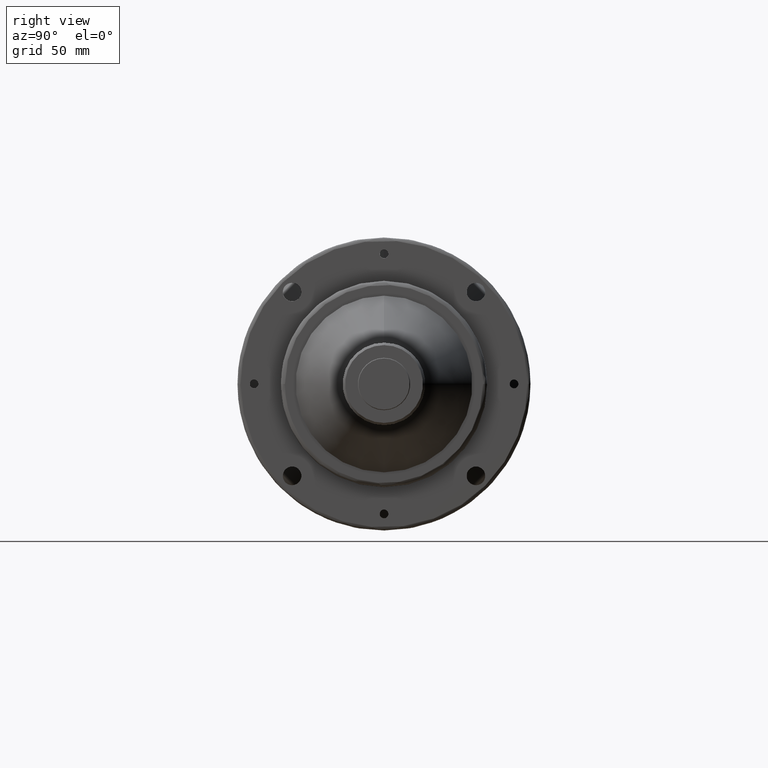
[diagram: clean part render]
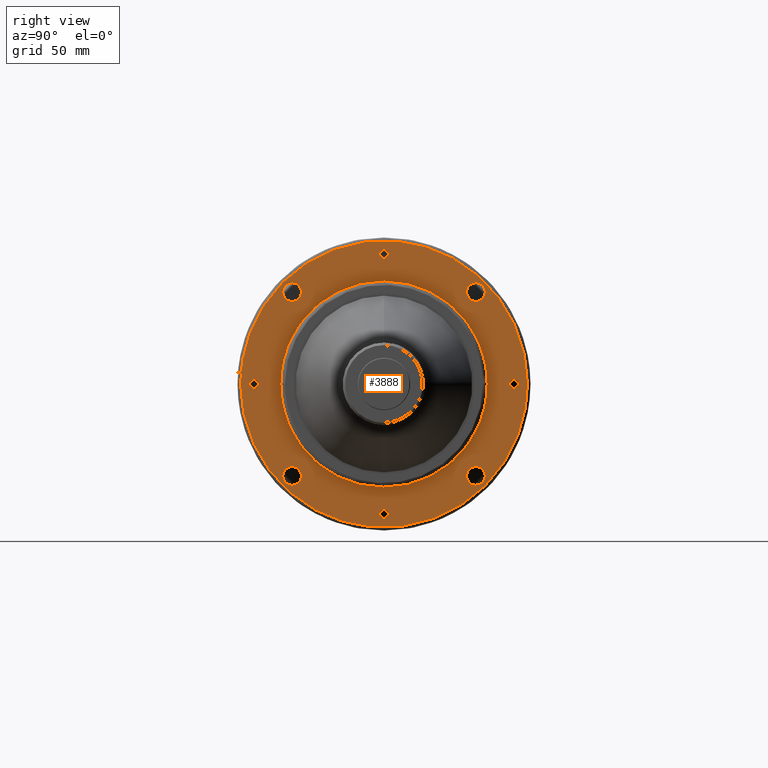
[diagram: same view with one face highlighted and labeled with its STEP entity id]
A machine part, right view. The second image highlights one B-rep face of the part: STEP entity #3888.
In plain terms, the highlighted planar face has unit normal (1, 0, 0).
Its self-contained STEP definition (entity closure, byte-faithful):
#10 = CARTESIAN_POINT ( 'NONE',  ( -7.549999999999999800, -50.19856076491080900, -48.08224704094200800 ) ) ;
#15 = CARTESIAN_POINT ( 'NONE',  ( -7.550000000000000700, 63.00000000000000000, 0.0000000000000000000 ) ) ;
#17 = DIRECTION ( 'NONE',  ( 1.000000000000000000, 0.0000000000000000000, 0.0000000000000000000 ) ) ;
#30 = CARTESIAN_POINT ( 'NONE',  ( -7.550000000000001600, 3.615260546552352800, -69.43241122376834100 ) ) ;
#40 = EDGE_CURVE ( 'NONE', #1975, #3108, #3628, .T. ) ;
#42 = CARTESIAN_POINT ( 'NONE',  ( -7.550000000000000700, 25.09679723494514300, -64.81055583208697600 ) ) ;
#52 = ORIENTED_EDGE ( 'NONE', *, *, #707, .F. ) ;
#54 = CARTESIAN_POINT ( 'NONE',  ( -7.550000000000000700, 63.95429950287173400, 27.23775621173142600 ) ) ;
#63 = FACE_BOUND ( 'NONE', #1265, .T. ) ;
#64 = CARTESIAN_POINT ( 'NONE',  ( -7.550000000000001600, 8.294447970727551600, -69.00351358834350900 ) ) ;
#67 = CARTESIAN_POINT ( 'NONE',  ( -7.550000000000000700, 68.90720405759661600, 9.058214138124242300 ) ) ;
#75 = CARTESIAN_POINT ( 'NONE',  ( -7.549999999999998900, -25.25976417166658900, -64.74721643963924600 ) ) ;
#77 = CARTESIAN_POINT ( 'NONE',  ( -7.549999999999999800, 53.78308353698385200, 44.04662492312582600 ) ) ;
#82 = CARTESIAN_POINT ( 'NONE',  ( -7.550000000000000700, 58.34761153637542500, -37.76728982527618700 ) ) ;
#84 = CARTESIAN_POINT ( 'NONE',  ( -7.550000000000000700, 59.42941193953786400, 36.03326317694079300 ) ) ;
#95 = EDGE_CURVE ( 'NONE', #1355, #2692, #2630, .T. ) ;
#97 = CARTESIAN_POINT ( 'NONE',  ( -7.549999999999999800, 62.41311369195864200, -30.57538663680958300 ) ) ;
#99 = CARTESIAN_POINT ( 'NONE',  ( -7.549999999999999800, 68.06592874925625800, 14.04578603505306100 ) ) ;
#108 = CIRCLE ( 'NONE', #4150, 4.499999999999997300 ) ;
#109 = CARTESIAN_POINT ( 'NONE',  ( -7.549999999999999800, 55.51076990307650800, -41.81872439423686700 ) ) ;
#112 = CARTESIAN_POINT ( 'NONE',  ( -7.550000000000000700, 18.30477206436072300, 67.04779601048049600 ) ) ;
#125 = CARTESIAN_POINT ( 'NONE',  ( -7.550000000000002500, 62.26530769988981000, -30.87576407963481600 ) ) ;
#127 = CARTESIAN_POINT ( 'NONE',  ( -7.549999999999997200, 33.22327052001399700, 61.04517979988700200 ) ) ;
#137 = CARTESIAN_POINT ( 'NONE',  ( -7.550000000000000700, 50.98983104269945000, -47.22593120248878100 ) ) ;
#140 = CARTESIAN_POINT ( 'NONE',  ( -7.550000000000000700, 21.86129115416849100, 65.99883956362266700 ) ) ;
#155 = CARTESIAN_POINT ( 'NONE',  ( -7.550000000000000700, 38.46907077489538600, 57.89805799413041900 ) ) ;
#171 = CARTESIAN_POINT ( 'NONE',  ( -7.549999999999999800, 40.03791677179214000, 56.80899079802440400 ) ) ;
#177 = EDGE_CURVE ( 'NONE', #2692, #1355, #2801, .T. ) ;
#185 = CARTESIAN_POINT ( 'NONE',  ( -7.550000000000001600, -8.294447970838186600, 69.00351358834355200 ) ) ;
#196 = DIRECTION ( 'NONE',  ( 0.0000000000000000000, 0.0000000000000000000, -1.000000000000000000 ) ) ;
#197 = CARTESIAN_POINT ( 'NONE',  ( -7.550000000000000700, -31.63417699425959700, 61.88489750263829600 ) ) ;
#198 = CARTESIAN_POINT ( 'NONE',  ( -7.550000000000000700, -69.50000000069110200, -1.544359106962354800 ) ) ;
#210 = CARTESIAN_POINT ( 'NONE',  ( -7.549999999999999800, -20.51574973066741900, 66.42941320202811500 ) ) ;
#211 = CARTESIAN_POINT ( 'NONE',  ( -7.550000000000000700, -68.17650891087990300, -13.50155357602147500 ) ) ;
#213 = ORIENTED_EDGE ( 'NONE', *, *, #2114, .T. ) ;
#220 = CARTESIAN_POINT ( 'NONE',  ( -7.549999999999999800, 67.32429834172643300, -17.29471601193021600 ) ) ;
#222 = CARTESIAN_POINT ( 'NONE',  ( -7.550000000000000700, -15.88732362170667400, 67.66144867010928000 ) ) ;
#223 = CARTESIAN_POINT ( 'NONE',  ( -7.549999999999999800, -68.10320550340648500, -13.86444423099214000 ) ) ;
#237 = CARTESIAN_POINT ( 'NONE',  ( -7.550000000000000700, -8.475529838048270600, 68.98150071209028100 ) ) ;
#239 = CARTESIAN_POINT ( 'NONE',  ( -7.549999999999999800, -67.54248254134304800, -16.42197921350869200 ) ) ;
#252 = CARTESIAN_POINT ( 'NONE',  ( -7.550000000000000700, -64.23876230954549300, 26.53454522249170100 ) ) ;
#259 = DIRECTION ( 'NONE',  ( -1.000000000000000000, -0.0000000000000000000, 8.673617379884035500E-018 ) ) ;
#269 = CARTESIAN_POINT ( 'NONE',  ( -7.550000000000001600, -59.32118066688163100, 36.21116779202185400 ) ) ;
#271 = CARTESIAN_POINT ( 'NONE',  ( -7.550000000000000700, -60.34930476177179100, -34.47776121907958900 ) ) ;
#284 = CARTESIAN_POINT ( 'NONE',  ( -7.550000000000000700, 69.29498525142652500, -6.164280786298937700 ) ) ;
#288 = CARTESIAN_POINT ( 'NONE',  ( -7.549999999999998900, -67.32429834191785300, 17.29471601111683700 ) ) ;
#289 = CARTESIAN_POINT ( 'NONE',  ( -7.550000000000000700, -56.76676205774423100, -40.10419819830919200 ) ) ;
#307 = CARTESIAN_POINT ( 'NONE',  ( -7.549999999999999800, -58.80791969522658000, -37.05612595060155500 ) ) ;
#327 = CARTESIAN_POINT ( 'NONE',  ( -7.550000000000003400, -66.70326019980493000, 19.51732346155052500 ) ) ;
#328 = CARTESIAN_POINT ( 'NONE',  ( -7.550000000000000700, -46.10741090773434100, -52.00383765573300100 ) ) ;
#344 = CARTESIAN_POINT ( 'NONE',  ( -7.549999999999999800, -63.95429950271125100, -27.23775621196107000 ) ) ;
#355 = CARTESIAN_POINT ( 'NONE',  ( -7.550000000000001600, -17.27906537018446200, -67.31784029000128600 ) ) ;
#368 = CARTESIAN_POINT ( 'NONE',  ( -7.550000000000000700, 30.55498467177055100, -62.42986287144088200 ) ) ;
#381 = ORIENTED_EDGE ( 'NONE', *, *, #4095, .F. ) ;
#382 = CARTESIAN_POINT ( 'NONE',  ( -7.550000000000000700, -13.61440410430327400, -68.18006284680748800 ) ) ;
#384 = CARTESIAN_POINT ( 'NONE',  ( -7.549999999999999800, 69.05313191440346500, 7.885421235342117400 ) ) ;
#393 = AXIS2_PLACEMENT_3D ( 'NONE', #3924, #2231, #196 ) ;
#394 = CARTESIAN_POINT ( 'NONE',  ( -7.550000000000000700, 24.59965545199072800, -65.00124770492989500 ) ) ;
#395 = CARTESIAN_POINT ( 'NONE',  ( -7.549999999999998000, 59.51607179965938600, 35.89003917368981400 ) ) ;
#397 = CARTESIAN_POINT ( 'NONE',  ( -7.550000000000002500, 64.73144780721951000, -25.30054592618736100 ) ) ;
#406 = CARTESIAN_POINT ( 'NONE',  ( -7.549999999999999800, -38.46907077483527400, -57.89805799411262700 ) ) ;
#408 = CARTESIAN_POINT ( 'NONE',  ( -7.550000000000000700, 68.92910199529274000, 8.890741493224366500 ) ) ;
#411 = CIRCLE ( 'NONE', #4138, 2.099999999999990800 ) ;
#416 = B_SPLINE_CURVE_WITH_KNOTS ( 'NONE', 3,
 ( #988, #3678, #1682, #4026, #384, #1046, #408, #67, #3798, #1448, #1077, #747, #2457, #3088, #1089, #2804, #1437, #99, #2782, #3408, #3129, #3447, #2793, #2767, #3459, #433, #1786, #4141, #3783, #1775, #3774, #734, #3420, #2133, #2471, #1738, #419, #711, #4126, #1764, #54, #2082, #3749, #4114, #1423, #3118, #2817, #2121, #2443, #1411, #3099, #1101, #1460, #395, #4088, #84, #2418, #1064, #3762, #1753, #3435, #4100, #2095, #2431, #722, #3109, #2108, #77, #1172, #2869, #1516, #805, #472, #2514, #3864, #2170, #3192, #1483, #778, #3536, #3825, #3164, #2146, #4165, #4201, #1529, #2828, #1155, #171, #2853, #1141, #3177, #1853, #155, #1815, #2187, #3474, #127, #3516, #4154, #3504, #1114, #2200, #2482, #3848, #1837, #2156, #2498, #2841, #4191, #2545, #140, #1825, #112, #457, #3490, #2529, #444, #502, #763, #487, #3155, #818, #4181, #3142, #1471, #3812, #1801, #792, #1128, #1498, #3834, #185, #237, #2262, #1570, #2557, #222, #4218, #3239, #872, #3938, #2232, #210, #3222, #1258, #1583, #1930, #2587, #2903, #3926, #2889, #1915, #197, #851, #1205, #905, #1238, #4234, #2575, #3207, #534, #1190, #3910, #1900, #3252, #1885, #522, #888, #4265, #2919, #3267, #544, #3564, #1222, #3895, #4247, #3608, #3593, #2248, #2600, #560, #1597, #2935, #3577, #2946, #4279, #2276, #2614, #835, #3551, #1544, #3877, #1871, #2215, #1556, #4356, #2995, #1613, #1273, #1947, #269, #572, #2686, #2290, #634, #1345, #1999, #2341, #4296, #982, #3348, #3654, #1965, #3690, #252, #3624, #950, #1645, #936, #3972, #1326, #617, #3010, #3955, #2631, #1310, #3299, #2668, #327, #3671, #1676, #288, #592, #1660, #2963, #4003, #2305, #2979, #1291, #3026, #3635, #3317, #919, #3989, #4308, #3284, #1982, #4325, #967, #2650, #1628, #3332 ),
 .UNSPECIFIED., .F., .F.,
 ( 4, 1, 1, 1, 1, 1, 1, 1, 2, 2, 1, 1, 1, 1, 1, 2, 2, 1, 1, 1, 1, 1, 2, 2, 1, 1, 1, 1, 1, 2, 2, 1, 1, 1, 1, 1, 2, 2, 1, 1, 1, 1, 1, 2, 2, 1, 1, 1, 1, 1, 2, 2, 1, 1, 1, 1, 1, 2, 2, 1, 1, 1, 1, 1, 2, 2, 1, 1, 1, 1, 1, 2, 2, 1, 1, 1, 1, 1, 2, 2, 1, 1, 1, 1, 2, 2, 1, 1, 1, 1, 2, 2, 1, 1, 1, 2, 2, 2, 1, 1, 1, 2, 2, 1, 1, 1, 1, 2, 2, 1, 1, 1, 1, 2, 2, 1, 1, 1, 1, 1, 2, 2, 1, 1, 1, 1, 1, 2, 2, 1, 1, 1, 1, 1, 2, 2, 1, 1, 1, 1, 1, 2, 2, 1, 1, 1, 1, 1, 2, 2, 1, 1, 1, 1, 1, 2, 2, 1, 1, 1, 1, 1, 2, 2, 1, 1, 1, 1, 1, 2, 2, 1, 1, 1, 1, 1, 2, 2, 1, 1, 1, 1, 1, 2, 2, 1, 1, 1, 1, 1, 1, 2, 2, 4 ),
 ( 0.0000000000000000000, 0.03125000000000508600, 0.04687500000000763300, 0.05468750000000890300, 0.05859375000000949900, 0.06054687500000981900, 0.06152343750000999900, 0.06201171875001012400, 0.06225585937501016500, 0.06250000000001021400, 0.07812500000001268400, 0.08593750000001394700, 0.08984375000001458600, 0.09179687500001491900, 0.09277343750001508500, 0.09326171875001518200, 0.09375000000001527900, 0.1093750000000187200, 0.1171875000000204000, 0.1210937500000212200, 0.1230468750000216600, 0.1240234375000218300, 0.1245117187500219000, 0.1250000000000219800, 0.1406250000000234000, 0.1484375000000240600, 0.1523437500000244200, 0.1542968750000246500, 0.1552734375000247600, 0.1557617187500247900, 0.1562500000000248400, 0.1718750000000262000, 0.1796875000000268700, 0.1835937500000271700, 0.1855468750000273100, 0.1865234375000274200, 0.1870117187500274500, 0.1875000000000274500, 0.2031250000000278100, 0.2109375000000279800, 0.2148437500000280900, 0.2167968750000280900, 0.2177734375000281200, 0.2182617187500280900, 0.2187500000000280600, 0.2343750000000288400, 0.2421875000000292800, 0.2460937500000295000, 0.2480468750000296200, 0.2490234375000296400, 0.2495117187500296400, 0.2500000000000296400, 0.2656250000000294800, 0.2734375000000293700, 0.2773437500000293100, 0.2792968750000292500, 0.2802734375000292500, 0.2807617187500292500, 0.2812500000000293100, 0.2968750000000295900, 0.3046875000000297500, 0.3085937500000299200, 0.3105468750000300300, 0.3115234375000300300, 0.3120117187500300300, 0.3125000000000299800, 0.3281250000000305900, 0.3359375000000308100, 0.3398437500000309200, 0.3417968750000310300, 0.3427734375000310900, 0.3432617187500310900, 0.3437500000000311400, 0.3593750000000331400, 0.3671875000000340800, 0.3710937500000345300, 0.3730468750000347500, 0.3740234375000348600, 0.3745117187500349200, 0.3750000000000349700, 0.3906250000000373000, 0.3984375000000385200, 0.4023437500000391400, 0.4042968750000394100, 0.4052734375000395200, 0.4062500000000396300, 0.4218750000000418000, 0.4296875000000429100, 0.4335937500000434700, 0.4355468750000438000, 0.4365234375000439600, 0.4375000000000441300, 0.4531250000000468000, 0.4609375000000480700, 0.4648437500000487400, 0.4667968750000490700, 0.4687500000000493500, 0.5000000000000548500, 0.5156250000000576200, 0.5234375000000589500, 0.5273437500000596200, 0.5292968750000599500, 0.5312500000000602900, 0.5468750000000629500, 0.5546875000000641700, 0.5585937500000648400, 0.5605468750000651700, 0.5615234375000652800, 0.5625000000000655000, 0.5781250000000683900, 0.5859375000000698300, 0.5898437500000706100, 0.5917968750000709400, 0.5927734375000710500, 0.5937500000000711700, 0.6093750000000732700, 0.6171875000000743800, 0.6210937500000749400, 0.6230468750000750500, 0.6240234375000751600, 0.6245117187500752700, 0.6250000000000752700, 0.6406250000000760500, 0.6484375000000764900, 0.6523437500000766100, 0.6542968750000767200, 0.6552734375000768300, 0.6557617187500768300, 0.6562500000000769400, 0.6718750000000771600, 0.6796875000000771600, 0.6835937500000772700, 0.6855468750000772700, 0.6865234375000772700, 0.6870117187500772700, 0.6875000000000772700, 0.7031250000000761600, 0.7109375000000755000, 0.7148437500000751600, 0.7167968750000749400, 0.7177734375000748300, 0.7182617187500747200, 0.7187500000000746100, 0.7343750000000712800, 0.7421875000000695000, 0.7460937500000687200, 0.7480468750000683900, 0.7490234375000681700, 0.7495117187500681700, 0.7500000000000680600, 0.7656250000000657300, 0.7734375000000646100, 0.7773437500000640600, 0.7792968750000637300, 0.7802734375000636200, 0.7807617187500635000, 0.7812500000000632800, 0.7968750000000590600, 0.8046875000000570700, 0.8085937500000559600, 0.8105468750000555100, 0.8115234375000552900, 0.8120117187500550700, 0.8125000000000549600, 0.8281250000000497400, 0.8359375000000470700, 0.8398437500000458500, 0.8417968750000451900, 0.8427734375000449600, 0.8432617187500447400, 0.8437500000000446300, 0.8593750000000399700, 0.8671875000000376400, 0.8710937500000365300, 0.8730468750000359700, 0.8740234375000356400, 0.8745117187500355300, 0.8750000000000354200, 0.8906250000000288700, 0.8984375000000255400, 0.9023437500000238700, 0.9042968750000230900, 0.9052734375000226500, 0.9057617187500225400, 0.9062500000000224300, 0.9218750000000162100, 0.9296875000000132100, 0.9335937500000117700, 0.9355468750000109900, 0.9365234375000105500, 0.9370117187500104400, 0.9372558593750103300, 0.9375000000000102100, 1.000000000000000000 ),
 .UNSPECIFIED. ) ;
#417 = CARTESIAN_POINT ( 'NONE',  ( -7.549999999999999800, 38.60239017781153600, -57.79537092843164500 ) ) ;
#419 = CARTESIAN_POINT ( 'NONE',  ( -7.550000000000000700, 64.93392391623731900, 24.77572044679442700 ) ) ;
#426 = VERTEX_POINT ( 'NONE', #1050 ) ;
#429 = CARTESIAN_POINT ( 'NONE',  ( -7.550000000000000700, 63.55084096188070900, -28.16626316003152300 ) ) ;
#433 = CARTESIAN_POINT ( 'NONE',  ( -7.550000000000000700, 66.82930120887947100, 19.08183642733719100 ) ) ;
#440 = CARTESIAN_POINT ( 'NONE',  ( -7.550000000000000700, 59.95088452942056300, -35.17513152892566800 ) ) ;
#444 = CARTESIAN_POINT ( 'NONE',  ( -7.550000000000000700, 17.19471154812128700, 67.33943761591639500 ) ) ;
#455 = CARTESIAN_POINT ( 'NONE',  ( -7.550000000000000700, 45.57644664140999400, -52.46941075759613700 ) ) ;
#457 = CARTESIAN_POINT ( 'NONE',  ( -7.550000000000000700, 17.70695552318840900, 67.20691159242092300 ) ) ;
#467 = AXIS2_PLACEMENT_3D ( 'NONE', #871, #3266, #2274 ) ;
#471 = CARTESIAN_POINT ( 'NONE',  ( -7.550000000000000700, 54.97108579746820600, -42.52746396882445600 ) ) ;
#472 = CARTESIAN_POINT ( 'NONE',  ( -7.550000000000000700, 51.14331039656100600, 47.05967585577784700 ) ) ;
#487 = CARTESIAN_POINT ( 'NONE',  ( -7.550000000000000700, 11.14135281391699900, 68.60781726397731000 ) ) ;
#502 = CARTESIAN_POINT ( 'NONE',  ( -7.550000000000000700, 15.71538446372094600, 67.71515200287827000 ) ) ;
#522 = CARTESIAN_POINT ( 'NONE',  ( -7.550000000000000700, -39.53966341634120600, 57.15650983350144500 ) ) ;
#534 = CARTESIAN_POINT ( 'NONE',  ( -7.550000000000000700, -37.62300251807261700, 58.44275675383601500 ) ) ;
#536 = VERTEX_POINT ( 'NONE', #2548 ) ;
#544 = CARTESIAN_POINT ( 'NONE',  ( -7.550000000000002500, -45.27015428234319200, 52.73432771560868600 ) ) ;
#557 = CARTESIAN_POINT ( 'NONE',  ( -7.550000000000000700, 64.86855669955619400, -24.94636840093470200 ) ) ;
#560 = CARTESIAN_POINT ( 'NONE',  ( -7.549999999999998900, -50.67197046115736500, 47.56725663738284700 ) ) ;
#572 = CARTESIAN_POINT ( 'NONE',  ( -7.549999999999998900, -59.35795304108843600, 36.15085882400057900 ) ) ;
#573 = CARTESIAN_POINT ( 'NONE',  ( -7.550000000000002500, -66.75141105963577100, -19.35199785509238200 ) ) ;
#587 = CARTESIAN_POINT ( 'NONE',  ( -7.550000000000000700, 67.86335111312256200, -14.99680590235217400 ) ) ;
#592 = CARTESIAN_POINT ( 'NONE',  ( -7.550000000000001600, -67.69106689386431700, 15.76466445934577400 ) ) ;
#600 = CARTESIAN_POINT ( 'NONE',  ( -7.550000000000002500, 68.00512639611497400, -14.33713650917242800 ) ) ;
#603 = CIRCLE ( 'NONE', #801, 4.500000000000003600 ) ;
#605 = CARTESIAN_POINT ( 'NONE',  ( -7.550000000000000700, -39.80574023977031600, -56.97161109967500900 ) ) ;
#617 = CARTESIAN_POINT ( 'NONE',  ( -7.550000000000001600, -65.23328529726039400, 23.99545343952254900 ) ) ;
#618 = CARTESIAN_POINT ( 'NONE',  ( -7.550000000000000700, -64.96583608039897200, -24.69202804754523600 ) ) ;
#625 = ORIENTED_EDGE ( 'NONE', *, *, #1420, .F. ) ;
#634 = CARTESIAN_POINT ( 'NONE',  ( -7.550000000000000700, -60.75271028035390200, 33.78417080360046000 ) ) ;
#636 = CARTESIAN_POINT ( 'NONE',  ( -7.550000000000001600, -46.51364306101274300, -51.64205296160753300 ) ) ;
#655 = CARTESIAN_POINT ( 'NONE',  ( -7.549999999999996300, -62.56872603515460400, -30.25576652538056200 ) ) ;
#667 = CARTESIAN_POINT ( 'NONE',  ( -7.549999999999999800, -45.90333909971443700, -52.18375175878037500 ) ) ;
#670 = DIRECTION ( 'NONE',  ( 1.000000000000000000, 0.0000000000000000000, 0.0000000000000000000 ) ) ;
#684 = CARTESIAN_POINT ( 'NONE',  ( -7.550000000000000700, -18.30477206434925800, -67.04779601049040100 ) ) ;
#691 = ORIENTED_EDGE ( 'NONE', *, *, #4015, .T. ) ;
#694 = VERTEX_POINT ( 'NONE', #1208 ) ;
#695 = CARTESIAN_POINT ( 'NONE',  ( -7.550000000000000700, 26.46633858475649600, -64.27827650887915900 ) ) ;
#703 = DIRECTION ( 'NONE',  ( 1.000000000000000000, 0.0000000000000000000, 0.0000000000000000000 ) ) ;
#707 = EDGE_CURVE ( 'NONE', #1916, #1526, #603, .T. ) ;
#708 = CARTESIAN_POINT ( 'NONE',  ( -7.549999999999999800, -25.49934572472703200, -64.65323566181484700 ) ) ;
#711 = CARTESIAN_POINT ( 'NONE',  ( -7.550000000000002500, 64.91261266040024200, 24.83150326316631900 ) ) ;
#719 = CARTESIAN_POINT ( 'NONE',  ( -7.550000000000000700, 10.07902977875887500, -68.78029002936503400 ) ) ;
#722 = CARTESIAN_POINT ( 'NONE',  ( -7.550000000000001600, 55.64236188364857600, 41.64347186052036400 ) ) ;
#725 = FACE_BOUND ( 'NONE', #2873, .T. ) ;
#733 = CARTESIAN_POINT ( 'NONE',  ( -7.550000000000002500, -32.74401390420227600, -61.30319222041242700 ) ) ;
#734 = CARTESIAN_POINT ( 'NONE',  ( -7.549999999999998000, 66.02339109603205700, 21.74307443268780900 ) ) ;
#745 = CARTESIAN_POINT ( 'NONE',  ( -7.550000000000000700, 39.50392321831677800, -57.18121848517878900 ) ) ;
#747 = CARTESIAN_POINT ( 'NONE',  ( -7.550000000000001600, 68.88671056685917900, 9.212560375546258800 ) ) ;
#760 = CARTESIAN_POINT ( 'NONE',  ( -7.550000000000000700, 50.29878281740026600, -47.96303904799793800 ) ) ;
#763 = CARTESIAN_POINT ( 'NONE',  ( -7.550000000000000700, 13.61440410439956300, 68.18006284679940200 ) ) ;
#774 = CARTESIAN_POINT ( 'NONE',  ( -7.550000000000000700, 55.55541910674128300, -41.75939082263008100 ) ) ;
#778 = CARTESIAN_POINT ( 'NONE',  ( -7.549999999999999800, 46.51364306118424700, 51.64205296140062300 ) ) ;
#788 = CARTESIAN_POINT ( 'NONE',  ( -7.550000000000002500, 46.63565270216904000, -51.54526104549080400 ) ) ;
#792 = CARTESIAN_POINT ( 'NONE',  ( -7.550000000000002500, -3.615260547351649500, 69.43241122376838300 ) ) ;
#801 = AXIS2_PLACEMENT_3D ( 'NONE', #2220, #1875, #3213 ) ;
#802 = CARTESIAN_POINT ( 'NONE',  ( -7.550000000000001600, 33.89073299459358400, -60.69162040548508900 ) ) ;
#805 = CARTESIAN_POINT ( 'NONE',  ( -7.549999999999999800, 51.21870587700937700, 46.97769388678901900 ) ) ;
#814 = CARTESIAN_POINT ( 'NONE',  ( -7.550000000000000700, 0.0000000000000000000, -63.00000000000000000 ) ) ;
#818 = CARTESIAN_POINT ( 'NONE',  ( -7.550000000000000700, 9.365889867632290600, 68.86627120392353200 ) ) ;
#820 = CIRCLE ( 'NONE', #1640, 4.500000000000003600 ) ;
#825 = FACE_BOUND ( 'NONE', #1301, .T. ) ;
#835 = CARTESIAN_POINT ( 'NONE',  ( -7.550000000000000700, -54.97108579744279000, 42.52746396887856400 ) ) ;
#837 = AXIS2_PLACEMENT_3D ( 'NONE', #814, #1216, #1525 ) ;
#851 = CARTESIAN_POINT ( 'NONE',  ( -7.550000000000000700, -32.17096554415351100, 61.60626379771000700 ) ) ;
#858 = CARTESIAN_POINT ( 'NONE',  ( -7.549999999963315400, 69.49999998662580900, 0.0000000000000000000 ) ) ;
#866 = AXIS2_PLACEMENT_3D ( 'NONE', #3281, #1593, #901 ) ;
#871 = CARTESIAN_POINT ( 'NONE',  ( -7.550000000000000700, 0.0000000000000000000, 63.00000000000000000 ) ) ;
#872 = CARTESIAN_POINT ( 'NONE',  ( -7.549999999999999800, -16.93357724024665200, 67.40557788604076000 ) ) ;
#888 = CARTESIAN_POINT ( 'NONE',  ( -7.550000000000001600, -40.63824399967585100, 56.39559993744864400 ) ) ;
#889 = CARTESIAN_POINT ( 'NONE',  ( -7.550000000000001600, -68.03904949966707200, -14.17527399289572400 ) ) ;
#900 = CARTESIAN_POINT ( 'NONE',  ( -7.550000000000000700, 68.02282254857583200, -14.25293950921228600 ) ) ;
#901 = DIRECTION ( 'NONE',  ( 0.0000000000000000000, 0.0000000000000000000, -1.000000000000000000 ) ) ;
#903 = ORIENTED_EDGE ( 'NONE', *, *, #4022, .F. ) ;
#905 = CARTESIAN_POINT ( 'NONE',  ( -7.549999999999999800, -32.55323281091799000, 61.40471341072463900 ) ) ;
#917 = CARTESIAN_POINT ( 'NONE',  ( -7.550000000000000700, 65.23328529704593800, -23.99545344016259600 ) ) ;
#919 = CARTESIAN_POINT ( 'NONE',  ( -7.550000000000001600, -68.78330853499741700, 9.959155895538240000 ) ) ;
#920 = ORIENTED_EDGE ( 'NONE', *, *, #177, .F. ) ;
#936 = CARTESIAN_POINT ( 'NONE',  ( -7.549999999999997200, -64.84580738884166400, 25.00544284902024500 ) ) ;
#945 = CIRCLE ( 'NONE', #837, 2.099999999999990800 ) ;
#946 = CARTESIAN_POINT ( 'NONE',  ( -7.550000000000000700, 68.67500669357633600, -10.69147034324425900 ) ) ;
#950 = CARTESIAN_POINT ( 'NONE',  ( -7.549999999999999800, -64.73144780726130400, 25.30054592611332600 ) ) ;
#951 = CARTESIAN_POINT ( 'NONE',  ( -7.550000000000000700, -39.70603994978316800, -57.04105497924419400 ) ) ;
#967 = CARTESIAN_POINT ( 'NONE',  ( -7.549999999999999800, -68.88335407516876800, 9.237622243978490700 ) ) ;
#969 = CARTESIAN_POINT ( 'NONE',  ( -7.550000000000000700, -59.46410138106498500, -35.97598738332591500 ) ) ;
#973 = CARTESIAN_POINT ( 'NONE',  ( -7.550000000000000700, 44.54772721499999500, -44.54772721499999500 ) ) ;
#976 = CARTESIAN_POINT ( 'NONE',  ( -7.550000000000000700, 44.54772721499999500, 40.04772721499999500 ) ) ;
#982 = CARTESIAN_POINT ( 'NONE',  ( -7.549999999999997200, -62.41311369194168200, 30.57538663684061600 ) ) ;
#983 = CARTESIAN_POINT ( 'NONE',  ( -7.550000000000000700, -62.85584053342377300, -29.65646428664017300 ) ) ;
#988 = CARTESIAN_POINT ( 'NONE',  ( -7.549999999963315400, 69.49999998662580900, 0.0000000000000000000 ) ) ;
#1002 = CARTESIAN_POINT ( 'NONE',  ( -7.550000000000001600, -65.47366180124193100, -23.32059937067851500 ) ) ;
#1019 = CARTESIAN_POINT ( 'NONE',  ( -7.550000000000000700, -51.09300098921937700, -47.11429259083648400 ) ) ;
#1023 = CARTESIAN_POINT ( 'NONE',  ( -7.550000000000000700, 0.0000000000000000000, -63.00000000000000000 ) ) ;
#1033 = CARTESIAN_POINT ( 'NONE',  ( -7.550000000000001600, 25.01245348144262000, -64.84315612131543100 ) ) ;
#1042 = CARTESIAN_POINT ( 'NONE',  ( -7.550000000000000700, 15.88732362161501800, -67.66144867016431900 ) ) ;
#1046 = CARTESIAN_POINT ( 'NONE',  ( -7.550000000000000700, 68.97184676967552300, 8.555727005069895700 ) ) ;
#1050 = CARTESIAN_POINT ( 'NONE',  ( -7.550000000000000700, 2.571758278209430100E-016, -60.90000000000001300 ) ) ;
#1053 = EDGE_CURVE ( 'NONE', #3466, #1664, #108, .T. ) ;
#1062 = CARTESIAN_POINT ( 'NONE',  ( -7.549999999999999800, -9.899350284148381400, -68.79303408072053100 ) ) ;
#1064 = CARTESIAN_POINT ( 'NONE',  ( -7.549999999999999800, 58.80791969560512200, 37.05612595005664600 ) ) ;
#1075 = CARTESIAN_POINT ( 'NONE',  ( -7.549999999999998900, -33.73843679182492400, -60.76320660490987500 ) ) ;
#1077 = CARTESIAN_POINT ( 'NONE',  ( -7.550000000000001600, 68.88815598007785500, 9.201743790140904300 ) ) ;
#1087 = CARTESIAN_POINT ( 'NONE',  ( -7.550000000000000700, 45.63757086808459500, -52.41625413830208700 ) ) ;
#1089 = CARTESIAN_POINT ( 'NONE',  ( -7.549999999999999800, 68.31811532249385300, 12.77494407880212900 ) ) ;
#1096 = CARTESIAN_POINT ( 'NONE',  ( -7.550000000000000700, 59.13662996556368500, -36.51224345145558200 ) ) ;
#1101 = CARTESIAN_POINT ( 'NONE',  ( -7.550000000000000700, 59.87674128816094300, 35.28671026681834600 ) ) ;
#1112 = CARTESIAN_POINT ( 'NONE',  ( -7.550000000000001600, 64.56943411869680500, -25.71285148632620500 ) ) ;
#1114 = CARTESIAN_POINT ( 'NONE',  ( -7.550000000000000700, 32.74401390421487400, 61.30319222040729700 ) ) ;
#1117 = EDGE_LOOP ( 'NONE', ( #4360, #2564 ) ) ;
#1126 = CARTESIAN_POINT ( 'NONE',  ( -7.549999999999999800, 59.35795304108877700, -36.15085882400166600 ) ) ;
#1128 = CARTESIAN_POINT ( 'NONE',  ( -7.549999999999998900, -6.136866941027706800, 69.23521957234189000 ) ) ;
#1133 = DIRECTION ( 'NONE',  ( 1.000000000000000000, -0.0000000000000000000, -0.0000000000000000000 ) ) ;
#1138 = CARTESIAN_POINT ( 'NONE',  ( -7.550000000000000700, 51.01742933566140400, -47.19611471972487500 ) ) ;
#1139 = EDGE_LOOP ( 'NONE', ( #691, #213 ) ) ;
#1141 = CARTESIAN_POINT ( 'NONE',  ( -7.550000000000000700, 39.70603994987516200, 57.04105497917346700 ) ) ;
#1142 = CARTESIAN_POINT ( 'NONE',  ( -7.550000000000000700, -63.00000000000000000, 2.100000000000000100 ) ) ;
#1155 = CARTESIAN_POINT ( 'NONE',  ( -7.550000000000000700, 40.50043992246282400, 56.48141186531527300 ) ) ;
#1157 = AXIS2_PLACEMENT_3D ( 'NONE', #2214, #1325, #2766 ) ;
#1172 = CARTESIAN_POINT ( 'NONE',  ( -7.550000000000000700, 52.43335090422428400, 45.62472279083021200 ) ) ;
#1190 = CARTESIAN_POINT ( 'NONE',  ( -7.550000000000000700, -38.60239017766829800, 57.79537092849475500 ) ) ;
#1205 = CARTESIAN_POINT ( 'NONE',  ( -7.549999999999999800, -32.43865791630758400, 61.46540919009311900 ) ) ;
#1208 = CARTESIAN_POINT ( 'NONE',  ( -7.550000000000000700, 0.0000000000000000000, -50.00000000000000000 ) ) ;
#1216 = DIRECTION ( 'NONE',  ( 1.000000000000000000, 0.0000000000000000000, 0.0000000000000000000 ) ) ;
#1222 = CARTESIAN_POINT ( 'NONE',  ( -7.550000000000001600, -45.57644664138912600, 52.46941075761615300 ) ) ;
#1223 = CARTESIAN_POINT ( 'NONE',  ( -7.549999999999998900, -69.42311946971683800, -3.855836401797364300 ) ) ;
#1238 = CARTESIAN_POINT ( 'NONE',  ( -7.550000000000000700, -32.62958265004910200, 61.36417633137645600 ) ) ;
#1241 = CARTESIAN_POINT ( 'NONE',  ( -7.550000000000000700, -68.58132653180169300, -11.31841233806672300 ) ) ;
#1252 = CARTESIAN_POINT ( 'NONE',  ( -7.549999999999998900, 66.23549950744089200, -21.05966150836783900 ) ) ;
#1258 = CARTESIAN_POINT ( 'NONE',  ( -7.549999999999998000, -24.02052439701180500, 65.21875543154435200 ) ) ;
#1259 = CARTESIAN_POINT ( 'NONE',  ( -7.550000000000001600, -67.14607759244577800, -17.94462166508945000 ) ) ;
#1265 = EDGE_LOOP ( 'NONE', ( #52, #2297 ) ) ;
#1270 = CIRCLE ( 'NONE', #2507, 4.500000000000003600 ) ;
#1273 = CARTESIAN_POINT ( 'NONE',  ( -7.549999999999999800, -59.13662996556134700, 36.51224345144832700 ) ) ;
#1287 = CARTESIAN_POINT ( 'NONE',  ( -7.550000000000000700, 68.86016781937135500, -9.409147173885978400 ) ) ;
#1291 = CARTESIAN_POINT ( 'NONE',  ( -7.550000000000001600, -68.02282254857520600, 14.25293950921673800 ) ) ;
#1293 = CARTESIAN_POINT ( 'NONE',  ( -7.549999999999998900, -44.72229909300977400, -53.21509744675629600 ) ) ;
#1294 = AXIS2_PLACEMENT_3D ( 'NONE', #1953, #2620, #1298 ) ;
#1298 = DIRECTION ( 'NONE',  ( 0.0000000000000000000, 1.000000000000000000, 0.0000000000000000000 ) ) ;
#1299 = ORIENTED_EDGE ( 'NONE', *, *, #3200, .F. ) ;
#1301 = EDGE_LOOP ( 'NONE', ( #2113, #3520 ) ) ;
#1310 = CARTESIAN_POINT ( 'NONE',  ( -7.550000000000000700, -66.60193024560287300, 19.86095965005852200 ) ) ;
#1311 = CARTESIAN_POINT ( 'NONE',  ( -7.550000000000000700, -66.72835740674182100, -19.43134525117263000 ) ) ;
#1313 = AXIS2_PLACEMENT_3D ( 'NONE', #15, #2067, #1681 ) ;
#1325 = DIRECTION ( 'NONE',  ( 1.000000000000000000, 0.0000000000000000000, 0.0000000000000000000 ) ) ;
#1326 = CARTESIAN_POINT ( 'NONE',  ( -7.550000000000001600, -64.88055797836213400, 24.91513710679531000 ) ) ;
#1327 = CARTESIAN_POINT ( 'NONE',  ( -7.550000000000000700, -39.63952952043403100, -57.08729522444091500 ) ) ;
#1330 = CIRCLE ( 'NONE', #1157, 4.499999999999997300 ) ;
#1345 = CARTESIAN_POINT ( 'NONE',  ( -7.550000000000000700, -61.63127606165156900, 32.13005594148581400 ) ) ;
#1346 = B_SPLINE_CURVE_WITH_KNOTS ( 'NONE', 3,
 ( #2948, #198, #1223, #3286, #2577, #1917, #2937, #2920, #2277, #1572, #3301, #3566, #4266, #1241, #4249, #211, #223, #2588, #1557, #889, #3595, #3268, #239, #1259, #3609, #1598, #2615, #573, #1984, #1311, #4037, #4326, #1002, #3054, #2372, #618, #3027, #1646, #2033, #4357, #344, #3674, #983, #3706, #655, #2320, #2705, #3974, #3011, #3350, #271, #4004, #1629, #1662, #969, #1966, #4343, #307, #1677, #289, #3318, #1347, #2688, #3333, #3039, #2017, #1692, #3990, #3366, #2359, #2720, #2997, #3656, #1019, #1366, #10, #2342, #2000, #636, #328, #667, #3636, #3691, #2670, #1293, #4020, #4309, #2307, #2652, #605, #951, #1327, #1733, #406, #3084, #3378, #1075, #2079, #3735, #3773, #3391, #733, #4111, #2104, #1751, #3760, #4084, #708, #1721, #75, #2441, #2046, #2780, #684, #2092, #2415, #355, #3418, #3722, #382, #1705, #1062, #3115, #4097, #2764, #4053, #3069, #3107, #30, #1408, #2748, #2387, #64, #2735, #719, #2791, #3746, #1042, #1395, #4066, #3096, #2429, #3434, #2065, #1763, #1434, #394, #1382, #1033, #42, #695, #2402, #368, #3406, #2837, #1811, #2167, #2802, #3128, #802, #2496, #2117, #417, #1446, #2480, #4151, #745, #3443, #2825, #2466, #1823, #3821, #3471, #3161, #455, #1087, #3488, #788, #3808, #2512, #760, #1798, #2144, #3781, #137, #1138, #1496, #2851, #4177, #471, #4162, #1480, #109, #774, #1457, #1774, #4124, #82, #3502, #1096, #2153, #2453, #1126, #3456, #440, #3794, #3152, #3832, #125, #2131, #97, #3140, #1782, #4139, #429, #2814, #1112, #397, #3937, #3632, #557, #1609, #917, #1927, #1252, #1943, #3922, #1639, #4277, #1581, #4260, #2611, #220, #3951, #587, #3984, #4292, #600, #2975, #900, #2992, #3296, #946, #2258, #2316, #1287, #3968, #4305, #1978, #2302, #284, #4322, #2665 ),
 .UNSPECIFIED., .F., .F.,
 ( 4, 1, 1, 1, 1, 1, 1, 1, 2, 2, 1, 1, 1, 1, 1, 2, 2, 1, 1, 1, 1, 1, 2, 2, 1, 1, 1, 1, 1, 2, 2, 1, 1, 1, 1, 1, 2, 2, 1, 1, 1, 1, 1, 2, 2, 1, 1, 1, 1, 1, 2, 2, 1, 1, 1, 1, 1, 2, 2, 1, 1, 1, 1, 1, 2, 2, 1, 1, 1, 1, 1, 2, 2, 1, 1, 1, 1, 1, 2, 2, 1, 1, 1, 1, 2, 2, 1, 1, 1, 1, 2, 2, 1, 1, 1, 2, 2, 2, 1, 1, 1, 2, 2, 1, 1, 1, 1, 2, 2, 1, 1, 1, 1, 2, 2, 1, 1, 1, 1, 1, 2, 2, 1, 1, 1, 1, 1, 2, 2, 1, 1, 1, 1, 1, 2, 2, 1, 1, 1, 1, 1, 2, 2, 1, 1, 1, 1, 1, 2, 2, 1, 1, 1, 1, 1, 2, 2, 1, 1, 1, 1, 1, 2, 2, 1, 1, 1, 1, 1, 2, 2, 1, 1, 1, 1, 1, 2, 2, 1, 1, 1, 1, 1, 2, 2, 1, 1, 1, 1, 1, 1, 2, 2, 4 ),
 ( 0.0000000000000000000, 0.03124999999999075000, 0.04687499999998611500, 0.05468749999998379100, 0.05859374999998263200, 0.06054687499998206300, 0.06152343749998178500, 0.06201171874998166100, 0.06225585937498157700, 0.06249999999998150100, 0.07812499999997639400, 0.08593749999997384000, 0.08984374999997257700, 0.09179687499997195300, 0.09277343749997162000, 0.09326171874997144000, 0.09374999999997125900, 0.1093749999999662500, 0.1171874999999637500, 0.1210937499999625200, 0.1230468749999618800, 0.1240234374999616100, 0.1245117187499615000, 0.1249999999999614100, 0.1406249999999578900, 0.1484374999999561200, 0.1523437499999552300, 0.1542968749999548700, 0.1552734374999546800, 0.1557617187499545900, 0.1562499999999545100, 0.1718749999999525100, 0.1796874999999515400, 0.1835937499999510900, 0.1855468749999508400, 0.1865234374999507100, 0.1870117187499506800, 0.1874999999999506200, 0.2031249999999508700, 0.2109374999999510700, 0.2148437499999511500, 0.2167968749999511800, 0.2177734374999511500, 0.2182617187499510900, 0.2187499999999510700, 0.2343749999999505100, 0.2421874999999502100, 0.2460937499999501000, 0.2480468749999499800, 0.2490234374999499600, 0.2495117187499499800, 0.2499999999999500400, 0.2656249999999504800, 0.2734374999999506500, 0.2773437499999506500, 0.2792968749999507100, 0.2802734374999507600, 0.2807617187499507600, 0.2812499999999507600, 0.2968749999999531500, 0.3046874999999543700, 0.3085937499999550400, 0.3105468749999553100, 0.3115234374999555400, 0.3120117187499555900, 0.3124999999999557000, 0.3281249999999568100, 0.3359374999999574800, 0.3398437499999578100, 0.3417968749999579800, 0.3427734374999580300, 0.3432617187499580900, 0.3437499999999580900, 0.3593749999999599200, 0.3671874999999608100, 0.3710937499999612000, 0.3730468749999614200, 0.3740234374999615900, 0.3745117187499616400, 0.3749999999999617000, 0.3906249999999644700, 0.3984374999999659200, 0.4023437499999665800, 0.4042968749999668600, 0.4052734374999670800, 0.4062499999999673000, 0.4218749999999698600, 0.4296874999999711300, 0.4335937499999717400, 0.4355468749999720800, 0.4365234374999721900, 0.4374999999999723600, 0.4531249999999745200, 0.4609374999999755800, 0.4648437499999760700, 0.4667968749999763500, 0.4687499999999766300, 0.4999999999999809000, 0.5156249999999830100, 0.5234374999999841200, 0.5273437499999845700, 0.5292968749999849000, 0.5312499999999852300, 0.5468749999999873400, 0.5546874999999883400, 0.5585937499999889000, 0.5605468749999892300, 0.5615234374999893400, 0.5624999999999894500, 0.5781249999999910100, 0.5859374999999917800, 0.5898437499999921200, 0.5917968749999923400, 0.5927734374999924500, 0.5937499999999924500, 0.6093749999999937800, 0.6171874999999945600, 0.6210937499999948900, 0.6230468749999951200, 0.6240234374999952300, 0.6245117187499953400, 0.6249999999999954500, 0.6406249999999965600, 0.6484374999999971100, 0.6523437499999973400, 0.6542968749999974500, 0.6552734374999974500, 0.6557617187499975600, 0.6562499999999975600, 0.6718749999999988900, 0.6796874999999994400, 0.6835937499999997800, 0.6855468749999997800, 0.6865234374999998900, 0.6870117187499997800, 0.6874999999999997800, 0.7031250000000002200, 0.7109375000000005600, 0.7148437500000005600, 0.7167968750000006700, 0.7177734375000006700, 0.7182617187500007800, 0.7187500000000008900, 0.7343750000000028900, 0.7421875000000037700, 0.7460937500000042200, 0.7480468750000045500, 0.7490234375000046600, 0.7495117187500047700, 0.7500000000000047700, 0.7656250000000067700, 0.7734375000000076600, 0.7773437500000082200, 0.7792968750000084400, 0.7802734375000086600, 0.7807617187500086600, 0.7812500000000087700, 0.7968750000000088800, 0.8046875000000088800, 0.8085937500000087700, 0.8105468750000088800, 0.8115234375000088800, 0.8120117187500089900, 0.8125000000000091000, 0.8281250000000099900, 0.8359375000000104400, 0.8398437500000106600, 0.8417968750000107700, 0.8427734375000107700, 0.8432617187500107700, 0.8437500000000107700, 0.8593750000000107700, 0.8671875000000106600, 0.8710937500000106600, 0.8730468750000105500, 0.8740234375000105500, 0.8745117187500105500, 0.8750000000000104400, 0.8906250000000096600, 0.8984375000000092100, 0.9023437500000088800, 0.9042968750000087700, 0.9052734375000087700, 0.9057617187500086600, 0.9062500000000086600, 0.9218750000000058800, 0.9296875000000044400, 0.9335937500000037700, 0.9355468750000034400, 0.9365234375000032200, 0.9370117187500032200, 0.9372558593750032200, 0.9375000000000033300, 1.000000000000000000 ),
 .UNSPECIFIED. ) ;
#1347 = CARTESIAN_POINT ( 'NONE',  ( -7.549999999999998900, -55.89543967655998100, -41.30356836653563600 ) ) ;
#1351 = DIRECTION ( 'NONE',  ( 0.0000000000000000000, 0.0000000000000000000, -1.000000000000000000 ) ) ;
#1355 = VERTEX_POINT ( 'NONE', #2927 ) ;
#1366 = CARTESIAN_POINT ( 'NONE',  ( -7.550000000000001600, -51.06899989465274800, -47.14030887881487100 ) ) ;
#1371 = CARTESIAN_POINT ( 'NONE',  ( -7.550000000000000700, 44.54772721499999500, 49.04772721499998800 ) ) ;
#1382 = CARTESIAN_POINT ( 'NONE',  ( -7.550000000000002500, 24.84739547034957500, -64.90658538453455200 ) ) ;
#1384 = ORIENTED_EDGE ( 'NONE', *, *, #4238, .T. ) ;
#1386 = DIRECTION ( 'NONE',  ( 0.0000000000000000000, 0.0000000000000000000, -1.000000000000000000 ) ) ;
#1395 = CARTESIAN_POINT ( 'NONE',  ( -7.550000000000001600, 16.49795459697695700, -67.51388378302441100 ) ) ;
#1408 = CARTESIAN_POINT ( 'NONE',  ( -7.550000000000000700, 6.136866940428213000, -69.23521957234189000 ) ) ;
#1411 = CARTESIAN_POINT ( 'NONE',  ( -7.550000000000002500, 61.26587452850977700, 32.84439853310107800 ) ) ;
#1420 = EDGE_CURVE ( 'NONE', #3672, #2894, #1495, .T. ) ;
#1423 = CARTESIAN_POINT ( 'NONE',  ( -7.549999999999998000, 62.56872603517408700, 30.25576652535277900 ) ) ;
#1426 = CARTESIAN_POINT ( 'NONE',  ( -7.550000000000000700, -44.54772721499999500, -40.04772721499998800 ) ) ;
#1434 = CARTESIAN_POINT ( 'NONE',  ( -7.550000000000000700, 24.02052439711865300, -65.21875543148596000 ) ) ;
#1437 = CARTESIAN_POINT ( 'NONE',  ( -7.550000000000000700, 68.10320550343279000, 13.86444423086645200 ) ) ;
#1446 = CARTESIAN_POINT ( 'NONE',  ( -7.550000000000001600, 39.08877496996202400, -57.46622808630656500 ) ) ;
#1448 = CARTESIAN_POINT ( 'NONE',  ( -7.549999999999998900, 68.89134682242780600, 9.177823245533462100 ) ) ;
#1457 = CARTESIAN_POINT ( 'NONE',  ( -7.549999999999999800, 55.57881405164094700, -41.72824749198443300 ) ) ;
#1460 = CARTESIAN_POINT ( 'NONE',  ( -7.550000000000000700, 59.63688990375614200, 35.68925171702412100 ) ) ;
#1471 = CARTESIAN_POINT ( 'NONE',  ( -7.549999999999999800, 5.780748179664455800, 69.31969382113145200 ) ) ;
#1480 = CARTESIAN_POINT ( 'NONE',  ( -7.550000000000000700, 55.44372778772618900, -41.90766750103838900 ) ) ;
#1483 = CARTESIAN_POINT ( 'NONE',  ( -7.550000000000000700, 47.31846151681777000, 50.91065762087873700 ) ) ;
#1486 = CIRCLE ( 'NONE', #3991, 2.099999999999997900 ) ;
#1495 = CIRCLE ( 'NONE', #3917, 2.100000000000000100 ) ;
#1496 = CARTESIAN_POINT ( 'NONE',  ( -7.550000000000000700, 51.84881865263391600, -46.29646013182197400 ) ) ;
#1498 = CARTESIAN_POINT ( 'NONE',  ( -7.549999999999999800, -7.395878824154515000, 69.10704226486933500 ) ) ;
#1516 = CARTESIAN_POINT ( 'NONE',  ( -7.550000000000000700, 51.39414825081439600, 46.78600456098247000 ) ) ;
#1525 = DIRECTION ( 'NONE',  ( 0.0000000000000000000, 0.0000000000000000000, -1.000000000000000000 ) ) ;
#1526 = VERTEX_POINT ( 'NONE', #3292 ) ;
#1529 = CARTESIAN_POINT ( 'NONE',  ( -7.550000000000000700, 43.22434126095100000, 54.45046503878944600 ) ) ;
#1532 = CARTESIAN_POINT ( 'NONE',  ( -7.550000000000000700, -63.00000000000000000, 0.0000000000000000000 ) ) ;
#1542 = CARTESIAN_POINT ( 'NONE',  ( -7.550000000000000700, 2.571758278209447900E-016, 65.09999999999999400 ) ) ;
#1543 = EDGE_CURVE ( 'NONE', #2148, #1770, #3844, .T. ) ;
#1544 = CARTESIAN_POINT ( 'NONE',  ( -7.550000000000000700, -55.44372778771914800, 41.90766750105333200 ) ) ;
#1556 = CARTESIAN_POINT ( 'NONE',  ( -7.550000000000001600, -56.27795036572870700, 40.79608027016303100 ) ) ;
#1557 = CARTESIAN_POINT ( 'NONE',  ( -7.549999999999999800, -68.04981905808092800, -14.12348176759489800 ) ) ;
#1570 = CARTESIAN_POINT ( 'NONE',  ( -7.550000000000001600, -12.20477921564735400, 68.44644888567641800 ) ) ;
#1572 = CARTESIAN_POINT ( 'NONE',  ( -7.550000000000002500, -68.89134682242780600, -9.177823245543232000 ) ) ;
#1581 = CARTESIAN_POINT ( 'NONE',  ( -7.550000000000002500, 66.70326019979165700, -19.51732346159020900 ) ) ;
#1583 = CARTESIAN_POINT ( 'NONE',  ( -7.549999999999998900, -24.59965545193348300, 65.00124770496114500 ) ) ;
#1588 = FACE_BOUND ( 'NONE', #1117, .T. ) ;
#1593 = DIRECTION ( 'NONE',  ( -1.000000000000000000, -0.0000000000000000000, 8.673617379884035500E-018 ) ) ;
#1597 = CARTESIAN_POINT ( 'NONE',  ( -7.550000000000000700, -50.85761360045078300, 47.36838226933701200 ) ) ;
#1598 = CARTESIAN_POINT ( 'NONE',  ( -7.550000000000000700, -66.82930120887947100, -19.08183642733717600 ) ) ;
#1609 = CARTESIAN_POINT ( 'NONE',  ( -7.550000000000000700, 64.88055797836884200, -24.91513710677530100 ) ) ;
#1613 = CARTESIAN_POINT ( 'NONE',  ( -7.550000000000000700, -58.87611249965988900, 36.93228734710793000 ) ) ;
#1628 = CARTESIAN_POINT ( 'NONE',  ( -7.550000000000003400, -69.50000000069108800, 3.089059547351450200 ) ) ;
#1629 = CARTESIAN_POINT ( 'NONE',  ( -7.550000000000001600, -59.63688990374218000, -35.68925171707737600 ) ) ;
#1639 = CARTESIAN_POINT ( 'NONE',  ( -7.550000000000002500, 66.66121973710232900, -19.66056684801426600 ) ) ;
#1640 = AXIS2_PLACEMENT_3D ( 'NONE', #973, #1666, #4010 ) ;
#1645 = CARTESIAN_POINT ( 'NONE',  ( -7.550000000000000700, -64.81162409747237500, 25.09402847309529200 ) ) ;
#1646 = CARTESIAN_POINT ( 'NONE',  ( -7.550000000000001600, -64.91261266039251200, -24.83150326319267600 ) ) ;
#1648 = FACE_OUTER_BOUND ( 'NONE', #2827, .T. ) ;
#1660 = CARTESIAN_POINT ( 'NONE',  ( -7.550000000000000700, -67.86335111320627800, 14.99680590199632800 ) ) ;
#1662 = CARTESIAN_POINT ( 'NONE',  ( -7.549999999999999800, -59.51607179965219500, -35.89003917371734800 ) ) ;
#1664 = VERTEX_POINT ( 'NONE', #1371 ) ;
#1666 = DIRECTION ( 'NONE',  ( 1.000000000000000000, 0.0000000000000000000, 0.0000000000000000000 ) ) ;
#1676 = CARTESIAN_POINT ( 'NONE',  ( -7.550000000000002500, -66.97186796037092900, 18.59647637618703800 ) ) ;
#1677 = CARTESIAN_POINT ( 'NONE',  ( -7.550000000000000700, -57.89353305670326200, -38.48152901863182500 ) ) ;
#1681 = DIRECTION ( 'NONE',  ( 0.0000000000000000000, 0.0000000000000000000, -1.000000000000000000 ) ) ;
#1682 = CARTESIAN_POINT ( 'NONE',  ( -7.550000000000001600, 69.42311946971688000, 3.855836401247916700 ) ) ;
#1692 = CARTESIAN_POINT ( 'NONE',  ( -7.550000000000001600, -54.88728895339561100, -42.65029620921420400 ) ) ;
#1705 = CARTESIAN_POINT ( 'NONE',  ( -7.549999999999998900, -11.14135281384481300, -68.60781726398332100 ) ) ;
#1721 = CARTESIAN_POINT ( 'NONE',  ( -7.549999999999998000, -25.33845331191368500, -64.71645972322006900 ) ) ;
#1733 = CARTESIAN_POINT ( 'NONE',  ( -7.550000000000000700, -39.60745007961746500, -57.10955801923066800 ) ) ;
#1738 = CARTESIAN_POINT ( 'NONE',  ( -7.549999999999999800, 64.96583608042530500, 24.69202804745514300 ) ) ;
#1743 = ORIENTED_EDGE ( 'NONE', *, *, #2998, .T. ) ;
#1751 = CARTESIAN_POINT ( 'NONE',  ( -7.550000000000000700, -27.41851740630200500, -63.86955237009910000 ) ) ;
#1753 = CARTESIAN_POINT ( 'NONE',  ( -7.550000000000000700, 56.76676205824108500, 40.10419819759396600 ) ) ;
#1759 = DIRECTION ( 'NONE',  ( 0.0000000000000000000, 0.0000000000000000000, -1.000000000000000000 ) ) ;
#1762 = EDGE_LOOP ( 'NONE', ( #3247, #2205 ) ) ;
#1763 = CARTESIAN_POINT ( 'NONE',  ( -7.550000000000000700, 22.85797823923524100, -65.64028680046553200 ) ) ;
#1764 = CARTESIAN_POINT ( 'NONE',  ( -7.550000000000000700, 64.52865805035436600, 25.83270491764789200 ) ) ;
#1770 = VERTEX_POINT ( 'NONE', #1426 ) ;
#1774 = CARTESIAN_POINT ( 'NONE',  ( -7.550000000000002500, 56.27795036573432000, -40.79608027018066700 ) ) ;
#1775 = CARTESIAN_POINT ( 'NONE',  ( -7.550000000000000700, 66.72835740673797000, 19.43134525118591700 ) ) ;
#1782 = CARTESIAN_POINT ( 'NONE',  ( -7.549999999999999800, 62.45804379552721000, -30.48349938517865700 ) ) ;
#1786 = CARTESIAN_POINT ( 'NONE',  ( -7.550000000000000700, 66.77488242229401300, 19.27097496467529700 ) ) ;
#1798 = CARTESIAN_POINT ( 'NONE',  ( -7.549999999999999800, 50.67197046120058700, -47.56725663735099400 ) ) ;
#1801 = CARTESIAN_POINT ( 'NONE',  ( -7.550000000000001600, -1.447741991476605200, 69.50001041610192900 ) ) ;
#1811 = CARTESIAN_POINT ( 'NONE',  ( -7.549999999999999800, 32.43865791624971000, -61.46540919012017700 ) ) ;
#1815 = CARTESIAN_POINT ( 'NONE',  ( -7.550000000000000700, 36.78277463030793400, 58.99527220314445200 ) ) ;
#1819 = AXIS2_PLACEMENT_3D ( 'NONE', #2296, #259, #2636 ) ;
#1823 = CARTESIAN_POINT ( 'NONE',  ( -7.550000000000000700, 43.97017627799586100, -53.82949411669298500 ) ) ;
#1825 = CARTESIAN_POINT ( 'NONE',  ( -7.550000000000000700, 19.49606512424450600, 66.71609871014025800 ) ) ;
#1837 = CARTESIAN_POINT ( 'NONE',  ( -7.550000000000000700, 26.30171623621762600, 64.33258417830323600 ) ) ;
#1853 = CARTESIAN_POINT ( 'NONE',  ( -7.550000000000002500, 39.60745007961561700, 57.10955801923017100 ) ) ;
#1871 = CARTESIAN_POINT ( 'NONE',  ( -7.550000000000000700, -55.55541910673922200, 41.75939082263445800 ) ) ;
#1875 = DIRECTION ( 'NONE',  ( 1.000000000000000000, 0.0000000000000000000, 0.0000000000000000000 ) ) ;
#1881 = ORIENTED_EDGE ( 'NONE', *, *, #3733, .F. ) ;
#1885 = CARTESIAN_POINT ( 'NONE',  ( -7.550000000000000700, -39.50392321830518200, 57.18121848518391200 ) ) ;
#1897 = CIRCLE ( 'NONE', #3228, 2.100000000000000100 ) ;
#1900 = CARTESIAN_POINT ( 'NONE',  ( -7.550000000000000700, -39.33114010659853200, 57.30029418289224500 ) ) ;
#1915 = CARTESIAN_POINT ( 'NONE',  ( -7.549999999999999800, -30.55498467212885300, 62.42986287127330800 ) ) ;
#1916 = VERTEX_POINT ( 'NONE', #2096 ) ;
#1917 = CARTESIAN_POINT ( 'NONE',  ( -7.549999999999998900, -68.97184676967552300, -8.555727005198663800 ) ) ;
#1927 = CARTESIAN_POINT ( 'NONE',  ( -7.550000000000000700, 65.71840842054238900, -22.64818410364659900 ) ) ;
#1930 = CARTESIAN_POINT ( 'NONE',  ( -7.550000000000000700, -24.84739547031603000, 64.90658538455284100 ) ) ;
#1943 = CARTESIAN_POINT ( 'NONE',  ( -7.550000000000000700, 66.48182357826168200, -20.26122311839264300 ) ) ;
#1947 = CARTESIAN_POINT ( 'NONE',  ( -7.550000000000000700, -59.26595544457595800, 36.30158583947178400 ) ) ;
#1953 = CARTESIAN_POINT ( 'NONE',  ( -7.550000000000000700, -70.33400000000000300, -70.33400000000000300 ) ) ;
#1965 = CARTESIAN_POINT ( 'NONE',  ( -7.550000000000000700, -62.91563227159602400, 29.54487361667978700 ) ) ;
#1966 = CARTESIAN_POINT ( 'NONE',  ( -7.549999999999998900, -59.42941193953574000, -36.03326317694880700 ) ) ;
#1975 = VERTEX_POINT ( 'NONE', #1542 ) ;
#1978 = CARTESIAN_POINT ( 'NONE',  ( -7.550000000000002500, 68.88144061415957300, -9.251880239843901100 ) ) ;
#1982 = CARTESIAN_POINT ( 'NONE',  ( -7.550000000000000700, -68.87791433487009800, 9.278094791124999600 ) ) ;
#1984 = CARTESIAN_POINT ( 'NONE',  ( -7.549999999999998000, -66.73573036774124000, -19.40600500809756900 ) ) ;
#1999 = CARTESIAN_POINT ( 'NONE',  ( -7.550000000000000700, -62.05633455356221600, 31.29516667319355600 ) ) ;
#2000 = CARTESIAN_POINT ( 'NONE',  ( -7.550000000000002500, -47.31846151652371900, -50.91065762123341900 ) ) ;
#2017 = CARTESIAN_POINT ( 'NONE',  ( -7.550000000000000700, -55.62227222077654400, -41.67030324388963400 ) ) ;
#2020 = FACE_BOUND ( 'NONE', #1139, .T. ) ;
#2033 = CARTESIAN_POINT ( 'NONE',  ( -7.550000000000000700, -64.90257757983077600, -24.85772299809978100 ) ) ;
#2046 = CARTESIAN_POINT ( 'NONE',  ( -7.550000000000000700, -21.86129115414227900, -65.99883956364546100 ) ) ;
#2065 = CARTESIAN_POINT ( 'NONE',  ( -7.550000000000000700, 20.51574973091159400, -66.42941320189457600 ) ) ;
#2067 = DIRECTION ( 'NONE',  ( 1.000000000000000000, 0.0000000000000000000, 0.0000000000000000000 ) ) ;
#2068 = CARTESIAN_POINT ( 'NONE',  ( -7.550000000000000700, -44.54772721499999500, 44.54772721499999500 ) ) ;
#2079 = CARTESIAN_POINT ( 'NONE',  ( -7.550000000000000700, -33.22327051998937700, -61.04517979987974700 ) ) ;
#2082 = CARTESIAN_POINT ( 'NONE',  ( -7.550000000000002500, 63.23088223864688500, 28.85405032730245600 ) ) ;
#2092 = CARTESIAN_POINT ( 'NONE',  ( -7.550000000000000700, -17.70695552318225600, -67.20691159242623800 ) ) ;
#2095 = CARTESIAN_POINT ( 'NONE',  ( -7.550000000000000700, 55.74803226877907000, 41.50199408474695400 ) ) ;
#2096 = CARTESIAN_POINT ( 'NONE',  ( -7.550000000000000700, 44.54772721499999500, -49.04772721499999500 ) ) ;
#2104 = CARTESIAN_POINT ( 'NONE',  ( -7.550000000000000700, -29.62945001805136200, -62.89437664616060200 ) ) ;
#2108 = CARTESIAN_POINT ( 'NONE',  ( -7.549999999999999800, 54.88728895345813200, 42.65029620917312100 ) ) ;
#2113 = ORIENTED_EDGE ( 'NONE', *, *, #1053, .F. ) ;
#2114 = EDGE_CURVE ( 'NONE', #2619, #694, #3160, .T. ) ;
#2117 = CARTESIAN_POINT ( 'NONE',  ( -7.550000000000000700, 37.62300251831820900, -58.44275675372783500 ) ) ;
#2121 = CARTESIAN_POINT ( 'NONE',  ( -7.550000000000000700, 62.48657759806354100, 30.42496847795116800 ) ) ;
#2131 = CARTESIAN_POINT ( 'NONE',  ( -7.550000000000003400, 62.36890524807660800, -30.66557329313044300 ) ) ;
#2133 = CARTESIAN_POINT ( 'NONE',  ( -7.549999999999999800, 65.18653997092273800, 24.10529068778819100 ) ) ;
#2144 = CARTESIAN_POINT ( 'NONE',  ( -7.549999999999998900, 50.85761360047312300, -47.36838226932051300 ) ) ;
#2146 = CARTESIAN_POINT ( 'NONE',  ( -7.550000000000000700, 45.75718667891718600, 52.31186587645788700 ) ) ;
#2148 = VERTEX_POINT ( 'NONE', #2230 ) ;
#2153 = CARTESIAN_POINT ( 'NONE',  ( -7.550000000000000700, 59.26595544457712400, -36.30158583947556400 ) ) ;
#2156 = CARTESIAN_POINT ( 'NONE',  ( -7.549999999999998000, 25.74048193549773700, 64.55796106881175000 ) ) ;
#2167 = CARTESIAN_POINT ( 'NONE',  ( -7.550000000000000700, 32.55323281088454500, -61.40471341074026400 ) ) ;
#2170 = CARTESIAN_POINT ( 'NONE',  ( -7.549999999999998900, 50.19856076513482900, 48.08224704067178800 ) ) ;
#2187 = CARTESIAN_POINT ( 'NONE',  ( -7.550000000000001600, 34.76210365091272800, 60.18838946756817900 ) ) ;
#2200 = CARTESIAN_POINT ( 'NONE',  ( -7.550000000000001600, 31.48567272291544900, 61.97431955532389500 ) ) ;
#2205 = ORIENTED_EDGE ( 'NONE', *, *, #4051, .F. ) ;
#2214 = CARTESIAN_POINT ( 'NONE',  ( -7.550000000000000700, 44.54772721499999500, 44.54772721499999500 ) ) ;
#2215 = CARTESIAN_POINT ( 'NONE',  ( -7.550000000000001600, -55.57881405164113900, 41.72824749198500200 ) ) ;
#2220 = CARTESIAN_POINT ( 'NONE',  ( -7.550000000000000700, 44.54772721499999500, -44.54772721499999500 ) ) ;
#2230 = CARTESIAN_POINT ( 'NONE',  ( -7.550000000000000700, -44.54772721499999500, -49.04772721499999500 ) ) ;
#2231 = DIRECTION ( 'NONE',  ( 1.000000000000000000, 0.0000000000000000000, 0.0000000000000000000 ) ) ;
#2232 = CARTESIAN_POINT ( 'NONE',  ( -7.550000000000000700, -18.47874896496858800, 67.01334496914425600 ) ) ;
#2248 = CARTESIAN_POINT ( 'NONE',  ( -7.549999999999999800, -49.54480206864032300, 48.74673856773765100 ) ) ;
#2256 = EDGE_LOOP ( 'NONE', ( #903, #1299 ) ) ;
#2258 = CARTESIAN_POINT ( 'NONE',  ( -7.550000000000001600, 68.78330853498346200, -9.959155895647168000 ) ) ;
#2262 = CARTESIAN_POINT ( 'NONE',  ( -7.550000000000000700, -10.07902977887858100, 68.78029002929311300 ) ) ;
#2274 = DIRECTION ( 'NONE',  ( 0.0000000000000000000, 0.0000000000000000000, -1.000000000000000000 ) ) ;
#2276 = CARTESIAN_POINT ( 'NONE',  ( -7.550000000000000700, -53.02313755970912000, 44.95855932881417500 ) ) ;
#2277 = CARTESIAN_POINT ( 'NONE',  ( -7.550000000000001600, -68.89612370112242000, -9.141941810796876000 ) ) ;
#2290 = CARTESIAN_POINT ( 'NONE',  ( -7.550000000000000700, -59.95088452928207800, 35.17513152917909700 ) ) ;
#2296 = CARTESIAN_POINT ( 'NONE',  ( -7.550000000000000700, 0.0000000000000000000, 7.523163844587107500E-033 ) ) ;
#2297 = ORIENTED_EDGE ( 'NONE', *, *, #4233, .F. ) ;
#2302 = CARTESIAN_POINT ( 'NONE',  ( -7.550000000000000700, 68.88335407516875400, -9.237622243978574200 ) ) ;
#2305 = CARTESIAN_POINT ( 'NONE',  ( -7.550000000000000700, -68.00512639612834700, 14.33713650911545800 ) ) ;
#2307 = CARTESIAN_POINT ( 'NONE',  ( -7.550000000000000700, -40.50043992188815900, -56.48141186575716700 ) ) ;
#2316 = CARTESIAN_POINT ( 'NONE',  ( -7.550000000000000700, 68.83496397187708700, -9.592557022669558000 ) ) ;
#2320 = CARTESIAN_POINT ( 'NONE',  ( -7.550000000000002500, -62.52729301972752300, -30.34120197158394900 ) ) ;
#2330 = CARTESIAN_POINT ( 'NONE',  ( -7.550000000000000700, -44.54772721499999500, 44.54772721499999500 ) ) ;
#2333 = FACE_BOUND ( 'NONE', #1762, .T. ) ;
#2341 = CARTESIAN_POINT ( 'NONE',  ( -7.550000000000000700, -62.26530769983300900, 30.87576407973873700 ) ) ;
#2342 = CARTESIAN_POINT ( 'NONE',  ( -7.550000000000000700, -48.89751502336266500, -49.41656313199268900 ) ) ;
#2359 = CARTESIAN_POINT ( 'NONE',  ( -7.550000000000000700, -51.74311134274507400, -46.40103365007041700 ) ) ;
#2372 = CARTESIAN_POINT ( 'NONE',  ( -7.550000000000000700, -65.03991475983890800, -24.49661855903421800 ) ) ;
#2387 = CARTESIAN_POINT ( 'NONE',  ( -7.550000000000000700, 7.935071492345917600, -69.04577024414699300 ) ) ;
#2402 = CARTESIAN_POINT ( 'NONE',  ( -7.550000000000000700, 28.37413913801781400, -63.47058544388021800 ) ) ;
#2415 = CARTESIAN_POINT ( 'NONE',  ( -7.550000000000001600, -17.45028343170440600, -67.27366118434929400 ) ) ;
#2418 = CARTESIAN_POINT ( 'NONE',  ( -7.550000000000001600, 59.41299434988406600, 36.06032877956435800 ) ) ;
#2419 = VERTEX_POINT ( 'NONE', #4013 ) ;
#2429 = CARTESIAN_POINT ( 'NONE',  ( -7.550000000000000700, 17.02200126678457100, -67.38330055552953000 ) ) ;
#2431 = CARTESIAN_POINT ( 'NONE',  ( -7.550000000000000700, 55.68465681742750900, 41.58689874175817600 ) ) ;
#2439 = FACE_BOUND ( 'NONE', #2947, .T. ) ;
#2441 = CARTESIAN_POINT ( 'NONE',  ( -7.550000000000000700, -23.85886759721362800, -65.29170678804258900 ) ) ;
#2443 = CARTESIAN_POINT ( 'NONE',  ( -7.550000000000000700, 62.00255059033168000, 31.41786264813985200 ) ) ;
#2453 = CARTESIAN_POINT ( 'NONE',  ( -7.550000000000000700, 59.32118066688229200, -36.21116779202400000 ) ) ;
#2457 = CARTESIAN_POINT ( 'NONE',  ( -7.550000000000002500, 68.77264765934273800, 10.06427756392244500 ) ) ;
#2466 = CARTESIAN_POINT ( 'NONE',  ( -7.550000000000000700, 42.20292124699348300, -55.24590613951230000 ) ) ;
#2471 = CARTESIAN_POINT ( 'NONE',  ( -7.549999999999999800, 65.03991475988976800, 24.49661855885985800 ) ) ;
#2480 = CARTESIAN_POINT ( 'NONE',  ( -7.550000000000000700, 39.33114010663816600, -57.30029418287476500 ) ) ;
#2482 = CARTESIAN_POINT ( 'NONE',  ( -7.550000000000001600, 29.62945001734599200, 62.89437664644705000 ) ) ;
#2496 = CARTESIAN_POINT ( 'NONE',  ( -7.550000000000000700, 35.63775489856171700, -59.69392896850419600 ) ) ;
#2498 = CARTESIAN_POINT ( 'NONE',  ( -7.550000000000002500, 25.49934572463019200, 64.65323566185415400 ) ) ;
#2507 = AXIS2_PLACEMENT_3D ( 'NONE', #4040, #17, #1386 ) ;
#2512 = CARTESIAN_POINT ( 'NONE',  ( -7.549999999999998900, 49.54480206877859400, -48.74673856763581600 ) ) ;
#2514 = CARTESIAN_POINT ( 'NONE',  ( -7.550000000000002500, 51.09300098922324200, 47.11429259083397600 ) ) ;
#2529 = CARTESIAN_POINT ( 'NONE',  ( -7.550000000000000700, 17.27906537018632300, 67.31784028999973700 ) ) ;
#2543 = CIRCLE ( 'NONE', #2799, 4.499999999999997300 ) ;
#2545 = CARTESIAN_POINT ( 'NONE',  ( -7.550000000000000700, 23.85886759722859200, 65.29170678802958600 ) ) ;
#2548 = CARTESIAN_POINT ( 'NONE',  ( -7.549999999963315400, -69.49999998662580900, 0.0000000000000000000 ) ) ;
#2557 = CARTESIAN_POINT ( 'NONE',  ( -7.549999999999998900, -14.66338187761890700, 67.94223714332093800 ) ) ;
#2564 = ORIENTED_EDGE ( 'NONE', *, *, #40, .F. ) ;
#2572 = CARTESIAN_POINT ( 'NONE',  ( -7.550000000000000700, -44.54772721499999500, 49.04772721499998800 ) ) ;
#2575 = CARTESIAN_POINT ( 'NONE',  ( -7.550000000000000700, -33.89073299440644900, 60.69162040556749800 ) ) ;
#2577 = CARTESIAN_POINT ( 'NONE',  ( -7.550000000000000700, -69.05313191440346500, -7.885421235582486000 ) ) ;
#2587 = CARTESIAN_POINT ( 'NONE',  ( -7.550000000000000700, -25.01245348142543200, 64.84315612132478200 ) ) ;
#2588 = CARTESIAN_POINT ( 'NONE',  ( -7.550000000000000700, -68.06592874924268700, -14.04578603511799200 ) ) ;
#2600 = CARTESIAN_POINT ( 'NONE',  ( -7.549999999999999800, -50.29878281731959100, 47.96303904805741100 ) ) ;
#2611 = CARTESIAN_POINT ( 'NONE',  ( -7.550000000000000700, 66.97186796026156200, -18.59647637665175100 ) ) ;
#2614 = CARTESIAN_POINT ( 'NONE',  ( -7.550000000000000700, -54.33197065626548300, 43.34637851309977200 ) ) ;
#2615 = CARTESIAN_POINT ( 'NONE',  ( -7.550000000000001600, -66.77488242229404100, -19.27097496467530400 ) ) ;
#2619 = VERTEX_POINT ( 'NONE', #3513 ) ;
#2620 = DIRECTION ( 'NONE',  ( 1.000000000000000000, 0.0000000000000000000, 0.0000000000000000000 ) ) ;
#2630 = CIRCLE ( 'NONE', #393, 2.100000000000000100 ) ;
#2631 = CARTESIAN_POINT ( 'NONE',  ( -7.550000000000001600, -66.48182357842586000, 20.26122311790256300 ) ) ;
#2636 = DIRECTION ( 'NONE',  ( 0.0000000000000000000, 0.0000000000000000000, -1.000000000000000000 ) ) ;
#2650 = CARTESIAN_POINT ( 'NONE',  ( -7.550000000000002500, -69.29498525142655300, 6.164280786319906700 ) ) ;
#2652 = CARTESIAN_POINT ( 'NONE',  ( -7.550000000000000700, -40.03791677148429100, -56.80899079826112800 ) ) ;
#2655 = FACE_BOUND ( 'NONE', #2256, .T. ) ;
#2665 = CARTESIAN_POINT ( 'NONE',  ( -7.549999999963315400, 69.49999998662580900, 0.0000000000000000000 ) ) ;
#2668 = CARTESIAN_POINT ( 'NONE',  ( -7.550000000000003400, -66.68646583880045900, 19.57462827517484900 ) ) ;
#2669 = VERTEX_POINT ( 'NONE', #2572 ) ;
#2670 = CARTESIAN_POINT ( 'NONE',  ( -7.549999999999998900, -45.72914048257918300, -52.33638608203809600 ) ) ;
#2679 = DIRECTION ( 'NONE',  ( 1.000000000000000000, 0.0000000000000000000, 0.0000000000000000000 ) ) ;
#2686 = CARTESIAN_POINT ( 'NONE',  ( -7.550000000000000700, -59.37727669883162200, 36.11910985521675600 ) ) ;
#2688 = CARTESIAN_POINT ( 'NONE',  ( -7.549999999999999800, -55.74803226869886400, -41.50199408486241000 ) ) ;
#2692 = VERTEX_POINT ( 'NONE', #3175 ) ;
#2705 = CARTESIAN_POINT ( 'NONE',  ( -7.550000000000000700, -62.49963132767782500, -30.39814187292609700 ) ) ;
#2720 = CARTESIAN_POINT ( 'NONE',  ( -7.550000000000000700, -51.39414825078873900, -46.78600456099930200 ) ) ;
#2735 = CARTESIAN_POINT ( 'NONE',  ( -7.550000000000000700, 8.475529838063236500, -68.98150071208129900 ) ) ;
#2745 = AXIS2_PLACEMENT_3D ( 'NONE', #2068, #670, #1351 ) ;
#2748 = CARTESIAN_POINT ( 'NONE',  ( -7.549999999999999800, 7.395878823804810800, -69.10704226486934900 ) ) ;
#2764 = CARTESIAN_POINT ( 'NONE',  ( -7.550000000000000700, -8.833255768042995700, -68.93660960383390100 ) ) ;
#2766 = DIRECTION ( 'NONE',  ( 0.0000000000000000000, 0.0000000000000000000, -1.000000000000000000 ) ) ;
#2767 = CARTESIAN_POINT ( 'NONE',  ( -7.549999999999998900, 67.14607759244570700, 17.94462166508952400 ) ) ;
#2780 = CARTESIAN_POINT ( 'NONE',  ( -7.550000000000000700, -19.49606512422485600, -66.71609871015732600 ) ) ;
#2782 = CARTESIAN_POINT ( 'NONE',  ( -7.550000000000000700, 68.04981905808877200, 14.12348176755734400 ) ) ;
#2791 = CARTESIAN_POINT ( 'NONE',  ( -7.549999999999998000, 12.20477921543788800, -68.44644888580214100 ) ) ;
#2793 = CARTESIAN_POINT ( 'NONE',  ( -7.549999999999999800, 67.54248254134299100, 16.42197921350878800 ) ) ;
#2799 = AXIS2_PLACEMENT_3D ( 'NONE', #2330, #2679, #3339 ) ;
#2801 = CIRCLE ( 'NONE', #1313, 2.100000000000000100 ) ;
#2802 = CARTESIAN_POINT ( 'NONE',  ( -7.549999999999998000, 32.62958265003214100, -61.36417633138432100 ) ) ;
#2804 = CARTESIAN_POINT ( 'NONE',  ( -7.549999999999998900, 68.17650891092891600, 13.50155357578687000 ) ) ;
#2814 = CARTESIAN_POINT ( 'NONE',  ( -7.550000000000001600, 64.23876230941152700, -26.53454522272849700 ) ) ;
#2817 = CARTESIAN_POINT ( 'NONE',  ( -7.550000000000000700, 62.49963132768351000, 30.39814187291794700 ) ) ;
#2818 = CARTESIAN_POINT ( 'NONE',  ( -7.550000000000000700, 0.0000000000000000000, -65.09999999999999400 ) ) ;
#2822 = VERTEX_POINT ( 'NONE', #2818 ) ;
#2825 = CARTESIAN_POINT ( 'NONE',  ( -7.550000000000003400, 40.63824399984610400, -56.39559993728509800 ) ) ;
#2827 = EDGE_LOOP ( 'NONE', ( #1384, #1743 ) ) ;
#2828 = CARTESIAN_POINT ( 'NONE',  ( -7.550000000000000700, 41.41816657158479100, 55.81690068128691000 ) ) ;
#2837 = CARTESIAN_POINT ( 'NONE',  ( -7.550000000000000700, 32.17096554404154300, -61.60626379776236000 ) ) ;
#2841 = CARTESIAN_POINT ( 'NONE',  ( -7.550000000000000700, 25.33845331186408200, 64.71645972324022000 ) ) ;
#2851 = CARTESIAN_POINT ( 'NONE',  ( -7.550000000000001600, 53.02313755976715700, -44.95855932869056200 ) ) ;
#2853 = CARTESIAN_POINT ( 'NONE',  ( -7.549999999999999800, 39.80574023992934900, 56.97161109955275300 ) ) ;
#2869 = CARTESIAN_POINT ( 'NONE',  ( -7.550000000000000700, 51.74311134279291500, 46.40103365003895400 ) ) ;
#2873 = EDGE_LOOP ( 'NONE', ( #625, #1881 ) ) ;
#2889 = CARTESIAN_POINT ( 'NONE',  ( -7.550000000000000700, -28.37413913849552600, 63.47058544365680200 ) ) ;
#2894 = VERTEX_POINT ( 'NONE', #1142 ) ;
#2903 = CARTESIAN_POINT ( 'NONE',  ( -7.550000000000000700, -25.09679723492808300, 64.81055583209497700 ) ) ;
#2919 = CARTESIAN_POINT ( 'NONE',  ( -7.550000000000000700, -43.97017627777241700, 53.82949411690756800 ) ) ;
#2920 = CARTESIAN_POINT ( 'NONE',  ( -7.550000000000000700, -68.90720405759660100, -9.058214138158053400 ) ) ;
#2927 = CARTESIAN_POINT ( 'NONE',  ( -7.550000000000000700, 63.00000000000000000, -2.100000000000000100 ) ) ;
#2935 = CARTESIAN_POINT ( 'NONE',  ( -7.550000000000002500, -50.93697122815680000, 47.28293971959408300 ) ) ;
#2937 = CARTESIAN_POINT ( 'NONE',  ( -7.550000000000000700, -68.92910199529268300, -8.890741493290894600 ) ) ;
#2946 = CARTESIAN_POINT ( 'NONE',  ( -7.550000000000000700, -51.01742933566243500, 47.19611471972268600 ) ) ;
#2947 = EDGE_LOOP ( 'NONE', ( #3498, #920 ) ) ;
#2948 = CARTESIAN_POINT ( 'NONE',  ( -7.549999999963315400, -69.49999998662580900, 0.0000000000000000000 ) ) ;
#2954 = DIRECTION ( 'NONE',  ( 1.000000000000000000, 0.0000000000000000000, 0.0000000000000000000 ) ) ;
#2963 = CARTESIAN_POINT ( 'NONE',  ( -7.550000000000000700, -67.94671820871943200, 14.61216842795557000 ) ) ;
#2975 = CARTESIAN_POINT ( 'NONE',  ( -7.550000000000000700, 68.01670562236654400, -14.28210398959489400 ) ) ;
#2979 = CARTESIAN_POINT ( 'NONE',  ( -7.550000000000000700, -68.01670562237335100, 14.28210398956607300 ) ) ;
#2992 = CARTESIAN_POINT ( 'NONE',  ( -7.550000000000001600, 68.20144317378017700, -13.39887688634542700 ) ) ;
#2995 = CARTESIAN_POINT ( 'NONE',  ( -7.549999999999998900, -58.34761153636812000, 37.76728982525296600 ) ) ;
#2997 = CARTESIAN_POINT ( 'NONE',  ( -7.549999999999998900, -51.21870587699611800, -46.97769388679769500 ) ) ;
#2998 = EDGE_CURVE ( 'NONE', #536, #3849, #1346, .T. ) ;
#3010 = CARTESIAN_POINT ( 'NONE',  ( -7.549999999999998900, -65.71840842091765500, 22.64818410252646400 ) ) ;
#3011 = CARTESIAN_POINT ( 'NONE',  ( -7.550000000000000700, -62.00255059029778000, -31.41786264826965100 ) ) ;
#3026 = CARTESIAN_POINT ( 'NONE',  ( -7.549999999999999800, -68.20144317379842400, 13.39887688620317800 ) ) ;
#3027 = CARTESIAN_POINT ( 'NONE',  ( -7.550000000000000700, -64.93392391622211300, -24.77572044684653500 ) ) ;
#3039 = CARTESIAN_POINT ( 'NONE',  ( -7.550000000000003400, -55.64236188362512800, -41.64347186055412900 ) ) ;
#3054 = CARTESIAN_POINT ( 'NONE',  ( -7.549999999999999800, -65.18653997082779500, -24.10529068811369400 ) ) ;
#3069 = CARTESIAN_POINT ( 'NONE',  ( -7.549999999999999800, -2.895483982039686000, -69.49997916986930600 ) ) ;
#3084 = CARTESIAN_POINT ( 'NONE',  ( -7.550000000000000700, -36.78277463020283000, -58.99527220311336600 ) ) ;
#3088 = CARTESIAN_POINT ( 'NONE',  ( -7.550000000000001600, 68.58132653191384500, 11.31841233753049600 ) ) ;
#3096 = CARTESIAN_POINT ( 'NONE',  ( -7.550000000000000700, 16.93357724023191900, -67.40557788604959900 ) ) ;
#3099 = CARTESIAN_POINT ( 'NONE',  ( -7.550000000000000700, 60.34930476181630600, 34.47776121890924400 ) ) ;
#3102 = EDGE_CURVE ( 'NONE', #1664, #3466, #1330, .T. ) ;
#3107 = CARTESIAN_POINT ( 'NONE',  ( -7.550000000000000700, 1.447741991019839900, -69.50001041610194400 ) ) ;
#3108 = VERTEX_POINT ( 'NONE', #4259 ) ;
#3109 = CARTESIAN_POINT ( 'NONE',  ( -7.550000000000000700, 55.62227222077458300, 41.67030324389094200 ) ) ;
#3115 = CARTESIAN_POINT ( 'NONE',  ( -7.550000000000000700, -9.365889867606972200, -68.86627120392562100 ) ) ;
#3118 = CARTESIAN_POINT ( 'NONE',  ( -7.550000000000000700, 62.52729301973873500, 30.34120197156784100 ) ) ;
#3128 = CARTESIAN_POINT ( 'NONE',  ( -7.549999999999999800, 32.66885577072493200, -61.34327656883973400 ) ) ;
#3129 = CARTESIAN_POINT ( 'NONE',  ( -7.550000000000001600, 68.03398928303849400, 14.19954448897850500 ) ) ;
#3140 = CARTESIAN_POINT ( 'NONE',  ( -7.549999999999999800, 62.44254365335984100, -30.51523889022320200 ) ) ;
#3142 = CARTESIAN_POINT ( 'NONE',  ( -7.550000000000000700, 8.833255768045271200, 68.93660960383391500 ) ) ;
#3152 = CARTESIAN_POINT ( 'NONE',  ( -7.550000000000000700, 61.63127606183333300, -32.13005594115322300 ) ) ;
#3155 = CARTESIAN_POINT ( 'NONE',  ( -7.550000000000000700, 9.899350284190511200, 68.79303408071700700 ) ) ;
#3158 = CARTESIAN_POINT ( 'NONE',  ( -7.550000000000000700, -63.00000000000000000, -2.100000000000000100 ) ) ;
#3160 = CIRCLE ( 'NONE', #866, 50.00000000000000000 ) ;
#3161 = CARTESIAN_POINT ( 'NONE',  ( -7.550000000000000700, 45.48469534407969700, -52.54906186667996300 ) ) ;
#3164 = CARTESIAN_POINT ( 'NONE',  ( -7.550000000000000700, 45.81567495386608600, 52.26064817919283500 ) ) ;
#3175 = CARTESIAN_POINT ( 'NONE',  ( -7.550000000000000700, 63.00000000000000000, 2.100000000000000100 ) ) ;
#3177 = CARTESIAN_POINT ( 'NONE',  ( -7.550000000000001600, 39.63952952048057900, 57.08729522440511800 ) ) ;
#3192 = CARTESIAN_POINT ( 'NONE',  ( -7.549999999999998900, 48.89751502375467900, 49.41656313151974400 ) ) ;
#3200 = EDGE_CURVE ( 'NONE', #426, #2822, #945, .T. ) ;
#3207 = CARTESIAN_POINT ( 'NONE',  ( -7.550000000000000700, -35.63775489823424200, 59.69392896864837900 ) ) ;
#3213 = DIRECTION ( 'NONE',  ( 0.0000000000000000000, 0.0000000000000000000, -1.000000000000000000 ) ) ;
#3217 = CARTESIAN_POINT ( 'NONE',  ( -7.550000000000000700, -63.00000000000000000, 0.0000000000000000000 ) ) ;
#3222 = CARTESIAN_POINT ( 'NONE',  ( -7.550000000000001600, -22.85797823905211200, 65.64028680056569000 ) ) ;
#3228 = AXIS2_PLACEMENT_3D ( 'NONE', #1532, #3915, #4237 ) ;
#3239 = CARTESIAN_POINT ( 'NONE',  ( -7.550000000000001600, -16.75936646572197500, 67.44910512055126600 ) ) ;
#3247 = ORIENTED_EDGE ( 'NONE', *, *, #1543, .F. ) ;
#3252 = CARTESIAN_POINT ( 'NONE',  ( -7.550000000000000700, -39.43483360960525600, 57.22888769233498600 ) ) ;
#3266 = DIRECTION ( 'NONE',  ( 1.000000000000000000, -0.0000000000000000000, -0.0000000000000000000 ) ) ;
#3267 = CARTESIAN_POINT ( 'NONE',  ( -7.549999999999999800, -44.83925335403260700, 53.10251245738743400 ) ) ;
#3268 = CARTESIAN_POINT ( 'NONE',  ( -7.550000000000003400, -67.84410767097426700, -15.10751753382658100 ) ) ;
#3281 = CARTESIAN_POINT ( 'NONE',  ( -7.550000000000000700, 0.0000000000000000000, 7.523163844587107500E-033 ) ) ;
#3284 = CARTESIAN_POINT ( 'NONE',  ( -7.550000000000000700, -68.87261377538234800, 9.317414646405193700 ) ) ;
#3286 = CARTESIAN_POINT ( 'NONE',  ( -7.550000000000000700, -69.19888458770873300, -6.543702522623267000 ) ) ;
#3290 = PLANE ( 'NONE',  #1294 ) ;
#3292 = CARTESIAN_POINT ( 'NONE',  ( -7.550000000000000700, 44.54772721499999500, -40.04772721499998800 ) ) ;
#3296 = CARTESIAN_POINT ( 'NONE',  ( -7.550000000000000700, 68.43843914028261100, -12.15256604500580700 ) ) ;
#3299 = CARTESIAN_POINT ( 'NONE',  ( -7.549999999999999800, -66.66121973714773200, 19.66056684787861600 ) ) ;
#3301 = CARTESIAN_POINT ( 'NONE',  ( -7.550000000000000700, -68.88815598007781200, -9.201743790145807000 ) ) ;
#3307 = AXIS2_PLACEMENT_3D ( 'NONE', #4348, #4331, #3324 ) ;
#3317 = CARTESIAN_POINT ( 'NONE',  ( -7.550000000000000700, -68.67500669360033800, 10.69147034305752300 ) ) ;
#3318 = CARTESIAN_POINT ( 'NONE',  ( -7.550000000000001600, -56.18837991142761700, -40.90545752155840400 ) ) ;
#3324 = DIRECTION ( 'NONE',  ( 0.0000000000000000000, 0.0000000000000000000, -1.000000000000000000 ) ) ;
#3332 = CARTESIAN_POINT ( 'NONE',  ( -7.549999999963315400, -69.49999998662580900, 0.0000000000000000000 ) ) ;
#3333 = CARTESIAN_POINT ( 'NONE',  ( -7.549999999999998900, -55.68465681738109700, -41.58689874182490300 ) ) ;
#3339 = DIRECTION ( 'NONE',  ( 0.0000000000000000000, 0.0000000000000000000, -1.000000000000000000 ) ) ;
#3348 = CARTESIAN_POINT ( 'NONE',  ( -7.550000000000000700, -62.44254365335129400, 30.51523889023891200 ) ) ;
#3350 = CARTESIAN_POINT ( 'NONE',  ( -7.550000000000001600, -61.26587452845041100, -32.84439853332826700 ) ) ;
#3366 = CARTESIAN_POINT ( 'NONE',  ( -7.550000000000000700, -52.43335090414223000, -45.62472279088410000 ) ) ;
#3378 = CARTESIAN_POINT ( 'NONE',  ( -7.550000000000000700, -34.76210365083385100, -60.18838946754483700 ) ) ;
#3382 = DIRECTION ( 'NONE',  ( 1.000000000000000000, 0.0000000000000000000, 0.0000000000000000000 ) ) ;
#3391 = CARTESIAN_POINT ( 'NONE',  ( -7.550000000000000700, -32.77993381694300700, -61.28399165592279000 ) ) ;
#3406 = CARTESIAN_POINT ( 'NONE',  ( -7.550000000000000700, 31.63417699405060500, -61.88489750273603800 ) ) ;
#3408 = CARTESIAN_POINT ( 'NONE',  ( -7.550000000000001600, 68.03904949967103700, 14.17527399287671800 ) ) ;
#3418 = CARTESIAN_POINT ( 'NONE',  ( -7.549999999999999800, -17.19471154812470500, -67.33943761591606900 ) ) ;
#3420 = CARTESIAN_POINT ( 'NONE',  ( -7.550000000000000700, 65.47366180140468800, 23.32059937012053300 ) ) ;
#3432 = FACE_BOUND ( 'NONE', #3542, .T. ) ;
#3434 = CARTESIAN_POINT ( 'NONE',  ( -7.550000000000000700, 18.47874896510808200, -67.01334496906795800 ) ) ;
#3435 = CARTESIAN_POINT ( 'NONE',  ( -7.550000000000001600, 56.18837991171743300, 40.90545752114121600 ) ) ;
#3443 = CARTESIAN_POINT ( 'NONE',  ( -7.550000000000000700, 39.53966341633587700, -57.15650983350651900 ) ) ;
#3447 = CARTESIAN_POINT ( 'NONE',  ( -7.550000000000002500, 67.84410767097422500, 15.10751753382663800 ) ) ;
#3456 = CARTESIAN_POINT ( 'NONE',  ( -7.549999999999999800, 59.37727669882727400, -36.11910985522465700 ) ) ;
#3459 = CARTESIAN_POINT ( 'NONE',  ( -7.549999999999999800, 66.93674787691520600, 18.70321884720108900 ) ) ;
#3466 = VERTEX_POINT ( 'NONE', #976 ) ;
#3471 = CARTESIAN_POINT ( 'NONE',  ( -7.550000000000000700, 45.27015428241304600, -52.73432771554161700 ) ) ;
#3474 = CARTESIAN_POINT ( 'NONE',  ( -7.550000000000000700, 33.73843679187090300, 60.76320660492349600 ) ) ;
#3488 = CARTESIAN_POINT ( 'NONE',  ( -7.550000000000000700, 45.66934818229297100, -52.38856846957766300 ) ) ;
#3490 = CARTESIAN_POINT ( 'NONE',  ( -7.550000000000001600, 17.45028343170803400, 67.27366118434623800 ) ) ;
#3497 = DIRECTION ( 'NONE',  ( 0.0000000000000000000, 0.0000000000000000000, -1.000000000000000000 ) ) ;
#3498 = ORIENTED_EDGE ( 'NONE', *, *, #95, .F. ) ;
#3502 = CARTESIAN_POINT ( 'NONE',  ( -7.550000000000000700, 58.87611249966414600, -36.93228734712143800 ) ) ;
#3504 = CARTESIAN_POINT ( 'NONE',  ( -7.550000000000000700, 32.77993381694671600, 61.28399165592387700 ) ) ;
#3513 = CARTESIAN_POINT ( 'NONE',  ( -7.550000000000000700, 6.123233995736766100E-015, 50.00000000000000000 ) ) ;
#3516 = CARTESIAN_POINT ( 'NONE',  ( -7.549999999999999800, 32.96485417350153600, 61.18480755394026700 ) ) ;
#3520 = ORIENTED_EDGE ( 'NONE', *, *, #3102, .F. ) ;
#3536 = CARTESIAN_POINT ( 'NONE',  ( -7.550000000000000700, 46.10741090782627100, 52.00383765562219900 ) ) ;
#3542 = EDGE_LOOP ( 'NONE', ( #4346, #381 ) ) ;
#3551 = CARTESIAN_POINT ( 'NONE',  ( -7.550000000000000700, -55.28681801625623400, 42.11480066267693400 ) ) ;
#3564 = CARTESIAN_POINT ( 'NONE',  ( -7.550000000000001600, -45.48469534404358000, 52.54906186671461700 ) ) ;
#3566 = CARTESIAN_POINT ( 'NONE',  ( -7.550000000000000700, -68.88671056686016000, -9.212560375541471600 ) ) ;
#3570 = EDGE_CURVE ( 'NONE', #2419, #2669, #2543, .T. ) ;
#3577 = CARTESIAN_POINT ( 'NONE',  ( -7.550000000000000700, -50.98983104269292700, 47.22593120249363400 ) ) ;
#3593 = CARTESIAN_POINT ( 'NONE',  ( -7.550000000000000700, -48.00641872726675500, 50.28267640042341900 ) ) ;
#3595 = CARTESIAN_POINT ( 'NONE',  ( -7.550000000000000700, -68.03398928303848000, -14.19954448897849800 ) ) ;
#3608 = CARTESIAN_POINT ( 'NONE',  ( -7.550000000000000700, -46.63565270206370200, 51.54526104556836700 ) ) ;
#3609 = CARTESIAN_POINT ( 'NONE',  ( -7.549999999999999800, -66.93674787691522000, -18.70321884720103600 ) ) ;
#3624 = CARTESIAN_POINT ( 'NONE',  ( -7.550000000000001600, -64.56943411877496400, 25.71285148618810400 ) ) ;
#3628 = CIRCLE ( 'NONE', #467, 2.099999999999997900 ) ;
#3632 = CARTESIAN_POINT ( 'NONE',  ( -7.550000000000000700, 64.84580738882917200, -25.00544284904235300 ) ) ;
#3635 = CARTESIAN_POINT ( 'NONE',  ( -7.549999999999998900, -68.43843914031458600, 12.15256604475679200 ) ) ;
#3636 = CARTESIAN_POINT ( 'NONE',  ( -7.550000000000000700, -45.81567495383860200, -52.26064817922593900 ) ) ;
#3654 = CARTESIAN_POINT ( 'NONE',  ( -7.550000000000001600, -62.45804379552404100, 30.48349938518430900 ) ) ;
#3656 = CARTESIAN_POINT ( 'NONE',  ( -7.550000000000000700, -51.14331039655334600, -47.05967585578285700 ) ) ;
#3671 = CARTESIAN_POINT ( 'NONE',  ( -7.550000000000001600, -66.71212912692259100, 19.48698511344369400 ) ) ;
#3672 = VERTEX_POINT ( 'NONE', #3158 ) ;
#3674 = CARTESIAN_POINT ( 'NONE',  ( -7.550000000000000700, -63.23088223852651900, -28.85405032747470200 ) ) ;
#3678 = CARTESIAN_POINT ( 'NONE',  ( -7.550000000000001600, 69.50000000069107400, 1.544359106648393700 ) ) ;
#3689 = EDGE_CURVE ( 'NONE', #3108, #1975, #1486, .T. ) ;
#3690 = CARTESIAN_POINT ( 'NONE',  ( -7.550000000000000700, -63.55084096205930400, 28.16626315971586100 ) ) ;
#3691 = CARTESIAN_POINT ( 'NONE',  ( -7.549999999999998900, -45.75718667890326000, -52.31186587647462000 ) ) ;
#3706 = CARTESIAN_POINT ( 'NONE',  ( -7.549999999999999800, -62.66498641261977600, -30.05623799157506000 ) ) ;
#3722 = CARTESIAN_POINT ( 'NONE',  ( -7.549999999999999800, -15.71538446366590900, -67.71515200288290300 ) ) ;
#3733 = EDGE_CURVE ( 'NONE', #2894, #3672, #1897, .T. ) ;
#3735 = CARTESIAN_POINT ( 'NONE',  ( -7.550000000000000700, -32.96485417348882400, -61.18480755393645900 ) ) ;
#3746 = CARTESIAN_POINT ( 'NONE',  ( -7.550000000000000700, 14.66338187746183900, -67.94223714341528400 ) ) ;
#3749 = CARTESIAN_POINT ( 'NONE',  ( -7.550000000000000700, 62.85584053349393900, 29.65646428653966600 ) ) ;
#3760 = CARTESIAN_POINT ( 'NONE',  ( -7.550000000000001600, -26.30171623652623900, -64.33258417817788200 ) ) ;
#3762 = CARTESIAN_POINT ( 'NONE',  ( -7.550000000000002500, 57.89353305736570800, 38.48152901767819900 ) ) ;
#3773 = CARTESIAN_POINT ( 'NONE',  ( -7.550000000000001600, -32.85392576557797600, -61.24435683922619900 ) ) ;
#3774 = CARTESIAN_POINT ( 'NONE',  ( -7.550000000000000700, 66.45256300627893600, 20.37695196843574400 ) ) ;
#3781 = CARTESIAN_POINT ( 'NONE',  ( -7.550000000000000700, 50.93697122816969600, -47.28293971958454000 ) ) ;
#3783 = CARTESIAN_POINT ( 'NONE',  ( -7.550000000000000700, 66.73573036774126900, 19.40600500809758300 ) ) ;
#3789 = CARTESIAN_POINT ( 'NONE',  ( -7.550000000000000700, 44.54772721499999500, 44.54772721499999500 ) ) ;
#3794 = CARTESIAN_POINT ( 'NONE',  ( -7.550000000000000700, 60.75271028059624000, -33.78417080315695400 ) ) ;
#3798 = CARTESIAN_POINT ( 'NONE',  ( -7.549999999999999800, 68.89612370112233500, 9.141941810779851400 ) ) ;
#3808 = CARTESIAN_POINT ( 'NONE',  ( -7.550000000000000700, 48.00641872745109900, -50.28267640028757800 ) ) ;
#3812 = CARTESIAN_POINT ( 'NONE',  ( -7.549999999999998900, 2.895483982953281500, 69.49997916986929200 ) ) ;
#3821 = CARTESIAN_POINT ( 'NONE',  ( -7.550000000000002500, 44.83925335416294900, -53.10251245726227900 ) ) ;
#3825 = CARTESIAN_POINT ( 'NONE',  ( -7.549999999999998000, 45.90333909976195100, 52.18375175872309100 ) ) ;
#3832 = CARTESIAN_POINT ( 'NONE',  ( -7.550000000000001600, 62.05633455366828600, -31.29516667299954600 ) ) ;
#3834 = CARTESIAN_POINT ( 'NONE',  ( -7.550000000000000700, -7.935071492556470000, 69.04577024414700800 ) ) ;
#3844 = CIRCLE ( 'NONE', #3307, 4.500000000000003600 ) ;
#3848 = CARTESIAN_POINT ( 'NONE',  ( -7.549999999999999800, 27.41851740577297700, 63.86955237031391200 ) ) ;
#3849 = VERTEX_POINT ( 'NONE', #858 ) ;
#3864 = CARTESIAN_POINT ( 'NONE',  ( -7.550000000000001600, 51.06899989464574900, 47.14030887882334800 ) ) ;
#3877 = CARTESIAN_POINT ( 'NONE',  ( -7.550000000000000700, -55.51076990307243600, 41.81872439424553500 ) ) ;
#3887 = CIRCLE ( 'NONE', #2745, 4.499999999999997300 ) ;
#3888 = ADVANCED_FACE ( 'NONE', ( #2020, #2439, #63, #1588, #725, #2655, #825, #3432, #2333, #1648 ), #3290, .T. ) ;
#3895 = CARTESIAN_POINT ( 'NONE',  ( -7.550000000000001600, -45.63757086807402200, 52.41625413831219000 ) ) ;
#3910 = CARTESIAN_POINT ( 'NONE',  ( -7.550000000000001600, -39.08877496988527900, 57.46622808634038600 ) ) ;
#3915 = DIRECTION ( 'NONE',  ( 1.000000000000000000, 0.0000000000000000000, 0.0000000000000000000 ) ) ;
#3917 = AXIS2_PLACEMENT_3D ( 'NONE', #3217, #2954, #4225 ) ;
#3922 = CARTESIAN_POINT ( 'NONE',  ( -7.550000000000001600, 66.60193024551499300, -19.86095965032103900 ) ) ;
#3924 = CARTESIAN_POINT ( 'NONE',  ( -7.550000000000000700, 63.00000000000000000, 0.0000000000000000000 ) ) ;
#3926 = CARTESIAN_POINT ( 'NONE',  ( -7.550000000000000700, -26.46633858502944400, 64.27827650875153200 ) ) ;
#3937 = CARTESIAN_POINT ( 'NONE',  ( -7.550000000000000700, 64.81162409745073200, -25.09402847313352300 ) ) ;
#3938 = CARTESIAN_POINT ( 'NONE',  ( -7.549999999999999800, -17.02200126679328900, 67.38330055552476900 ) ) ;
#3951 = CARTESIAN_POINT ( 'NONE',  ( -7.550000000000000700, 67.69106689372078700, -15.76466445995581000 ) ) ;
#3955 = CARTESIAN_POINT ( 'NONE',  ( -7.550000000000001600, -66.23549950772239500, 21.05966150752772100 ) ) ;
#3968 = CARTESIAN_POINT ( 'NONE',  ( -7.549999999999999800, 68.87261377538044400, -9.317414646420495200 ) ) ;
#3972 = CARTESIAN_POINT ( 'NONE',  ( -7.550000000000000700, -64.86855669956256100, 24.94636840092352900 ) ) ;
#3974 = CARTESIAN_POINT ( 'NONE',  ( -7.550000000000000700, -62.48657759806459900, -30.42496847794711100 ) ) ;
#3984 = CARTESIAN_POINT ( 'NONE',  ( -7.550000000000001600, 67.94671820867466700, -14.61216842814620000 ) ) ;
#3989 = CARTESIAN_POINT ( 'NONE',  ( -7.549999999999998900, -68.83496397188452000, 9.592557022611201100 ) ) ;
#3990 = CARTESIAN_POINT ( 'NONE',  ( -7.550000000000000700, -53.78308353687442900, -44.04662492319771200 ) ) ;
#3991 = AXIS2_PLACEMENT_3D ( 'NONE', #4145, #1133, #3497 ) ;
#4003 = CARTESIAN_POINT ( 'NONE',  ( -7.549999999999998000, -67.98770800293660000, 14.41967264209372200 ) ) ;
#4004 = CARTESIAN_POINT ( 'NONE',  ( -7.550000000000000700, -59.87674128813496600, -35.28671026691771600 ) ) ;
#4010 = DIRECTION ( 'NONE',  ( 0.0000000000000000000, 0.0000000000000000000, -1.000000000000000000 ) ) ;
#4013 = CARTESIAN_POINT ( 'NONE',  ( -7.550000000000000700, -44.54772721499999500, 40.04772721499999500 ) ) ;
#4015 = EDGE_CURVE ( 'NONE', #694, #2619, #4316, .T. ) ;
#4020 = CARTESIAN_POINT ( 'NONE',  ( -7.550000000000000700, -43.22434125963750500, -54.45046503979950400 ) ) ;
#4022 = EDGE_CURVE ( 'NONE', #2822, #426, #411, .T. ) ;
#4026 = CARTESIAN_POINT ( 'NONE',  ( -7.550000000000001600, 69.19888458770874700, 6.543702522211196600 ) ) ;
#4037 = CARTESIAN_POINT ( 'NONE',  ( -7.550000000000001600, -66.45256300615497500, -20.37695196886087600 ) ) ;
#4040 = CARTESIAN_POINT ( 'NONE',  ( -7.550000000000000700, -44.54772721499999500, -44.54772721499999500 ) ) ;
#4051 = EDGE_CURVE ( 'NONE', #1770, #2148, #1270, .T. ) ;
#4053 = CARTESIAN_POINT ( 'NONE',  ( -7.549999999999998000, -5.780748179701134900, -69.31969382113139500 ) ) ;
#4066 = CARTESIAN_POINT ( 'NONE',  ( -7.550000000000000700, 16.75936646569321200, -67.44910512056849000 ) ) ;
#4084 = CARTESIAN_POINT ( 'NONE',  ( -7.550000000000001600, -25.74048193566308400, -64.55796106874466000 ) ) ;
#4088 = CARTESIAN_POINT ( 'NONE',  ( -7.550000000000000700, 59.46410138106918500, 35.97598738331005600 ) ) ;
#4095 = EDGE_CURVE ( 'NONE', #2669, #2419, #3887, .T. ) ;
#4097 = CARTESIAN_POINT ( 'NONE',  ( -7.549999999999999800, -9.009988785890433500, -68.91373117216470200 ) ) ;
#4100 = CARTESIAN_POINT ( 'NONE',  ( -7.550000000000000700, 55.89543967671527700, 41.30356836631213500 ) ) ;
#4111 = CARTESIAN_POINT ( 'NONE',  ( -7.549999999999998900, -31.48567272331854400, -61.97431955516021400 ) ) ;
#4114 = CARTESIAN_POINT ( 'NONE',  ( -7.550000000000000700, 62.66498641265739900, 30.05623799152125000 ) ) ;
#4124 = CARTESIAN_POINT ( 'NONE',  ( -7.550000000000000700, 57.26074548383874000, -39.41695352887804700 ) ) ;
#4126 = CARTESIAN_POINT ( 'NONE',  ( -7.549999999999999800, 64.90257757982794800, 24.85772299810388500 ) ) ;
#4138 = AXIS2_PLACEMENT_3D ( 'NONE', #1023, #3382, #4347 ) ;
#4139 = CARTESIAN_POINT ( 'NONE',  ( -7.549999999999999800, 62.91563227149396200, -29.54487361686013000 ) ) ;
#4141 = CARTESIAN_POINT ( 'NONE',  ( -7.550000000000000700, 66.75141105963572800, 19.35199785509239600 ) ) ;
#4145 = CARTESIAN_POINT ( 'NONE',  ( -7.550000000000000700, 0.0000000000000000000, 63.00000000000000000 ) ) ;
#4150 = AXIS2_PLACEMENT_3D ( 'NONE', #3789, #703, #1759 ) ;
#4151 = CARTESIAN_POINT ( 'NONE',  ( -7.550000000000000700, 39.43483360962815700, -57.22888769232484700 ) ) ;
#4154 = CARTESIAN_POINT ( 'NONE',  ( -7.550000000000002500, 32.85392576558533100, 61.24435683922840900 ) ) ;
#4162 = CARTESIAN_POINT ( 'NONE',  ( -7.549999999999998900, 55.28681801626984100, -42.11480066264793700 ) ) ;
#4165 = CARTESIAN_POINT ( 'NONE',  ( -7.550000000000000700, 45.72914048255575600, 52.33638608205616500 ) ) ;
#4177 = CARTESIAN_POINT ( 'NONE',  ( -7.550000000000000700, 54.33197065630897500, -43.34637851300707500 ) ) ;
#4181 = CARTESIAN_POINT ( 'NONE',  ( -7.550000000000000700, 9.009988785903724200, 68.91373117216360800 ) ) ;
#4191 = CARTESIAN_POINT ( 'NONE',  ( -7.550000000000001600, 25.25976417166564000, 64.74721643964009800 ) ) ;
#4201 = CARTESIAN_POINT ( 'NONE',  ( -7.550000000000001600, 44.72229909376034800, 53.21509744617914400 ) ) ;
#4218 = CARTESIAN_POINT ( 'NONE',  ( -7.549999999999998900, -16.49795459702604100, 67.51388378299491000 ) ) ;
#4225 = DIRECTION ( 'NONE',  ( 0.0000000000000000000, 0.0000000000000000000, -1.000000000000000000 ) ) ;
#4233 = EDGE_CURVE ( 'NONE', #1526, #1916, #820, .T. ) ;
#4234 = CARTESIAN_POINT ( 'NONE',  ( -7.550000000000001600, -32.66885577073077900, 61.34327656883719700 ) ) ;
#4237 = DIRECTION ( 'NONE',  ( 0.0000000000000000000, 0.0000000000000000000, -1.000000000000000000 ) ) ;
#4238 = EDGE_CURVE ( 'NONE', #3849, #536, #416, .T. ) ;
#4247 = CARTESIAN_POINT ( 'NONE',  ( -7.550000000000001600, -45.66934818229625400, 52.38856846957522600 ) ) ;
#4249 = CARTESIAN_POINT ( 'NONE',  ( -7.550000000000000700, -68.31811532240973900, -12.77494407920432300 ) ) ;
#4259 = CARTESIAN_POINT ( 'NONE',  ( -7.550000000000000700, 0.0000000000000000000, 60.90000000000000600 ) ) ;
#4260 = CARTESIAN_POINT ( 'NONE',  ( -7.550000000000000700, 66.71212912692603000, -19.48698511342916700 ) ) ;
#4265 = CARTESIAN_POINT ( 'NONE',  ( -7.550000000000002500, -42.20292124669556700, 55.24590613979841400 ) ) ;
#4266 = CARTESIAN_POINT ( 'NONE',  ( -7.550000000000000700, -68.77264765927864700, -10.06427756422887000 ) ) ;
#4277 = CARTESIAN_POINT ( 'NONE',  ( -7.550000000000000700, 66.68646583877419700, -19.57462827525329600 ) ) ;
#4279 = CARTESIAN_POINT ( 'NONE',  ( -7.549999999999999800, -51.84881865260075500, 46.29646013189261600 ) ) ;
#4292 = CARTESIAN_POINT ( 'NONE',  ( -7.549999999999998900, 67.98770800291337900, -14.41967264219223000 ) ) ;
#4296 = CARTESIAN_POINT ( 'NONE',  ( -7.550000000000000700, -62.36890524804725500, 30.66557329318414600 ) ) ;
#4305 = CARTESIAN_POINT ( 'NONE',  ( -7.550000000000002500, 68.87791433486901800, -9.278094791133787200 ) ) ;
#4308 = CARTESIAN_POINT ( 'NONE',  ( -7.549999999999997200, -68.86016781937522100, 9.409147173855823000 ) ) ;
#4309 = CARTESIAN_POINT ( 'NONE',  ( -7.549999999999998900, -41.41816657059963800, -55.81690068204441200 ) ) ;
#4316 = CIRCLE ( 'NONE', #1819, 50.00000000000000000 ) ;
#4322 = CARTESIAN_POINT ( 'NONE',  ( -7.550000000000000700, 69.50000000069108800, -3.089059547330489600 ) ) ;
#4325 = CARTESIAN_POINT ( 'NONE',  ( -7.550000000000000700, -68.88144061416004100, 9.251880239839485000 ) ) ;
#4326 = CARTESIAN_POINT ( 'NONE',  ( -7.549999999999999800, -66.02339109581508600, -21.74307443343182600 ) ) ;
#4331 = DIRECTION ( 'NONE',  ( 1.000000000000000000, 0.0000000000000000000, 0.0000000000000000000 ) ) ;
#4343 = CARTESIAN_POINT ( 'NONE',  ( -7.550000000000000700, -59.41299434989585400, -36.06032877954727700 ) ) ;
#4346 = ORIENTED_EDGE ( 'NONE', *, *, #3570, .F. ) ;
#4347 = DIRECTION ( 'NONE',  ( 0.0000000000000000000, 0.0000000000000000000, -1.000000000000000000 ) ) ;
#4348 = CARTESIAN_POINT ( 'NONE',  ( -7.550000000000000700, -44.54772721499999500, -44.54772721499999500 ) ) ;
#4356 = CARTESIAN_POINT ( 'NONE',  ( -7.550000000000001600, -57.26074548382900500, 39.41695352884705300 ) ) ;
#4357 = CARTESIAN_POINT ( 'NONE',  ( -7.550000000000002500, -64.52865805026264900, -25.83270491777911800 ) ) ;
#4360 = ORIENTED_EDGE ( 'NONE', *, *, #3689, .F. ) ;